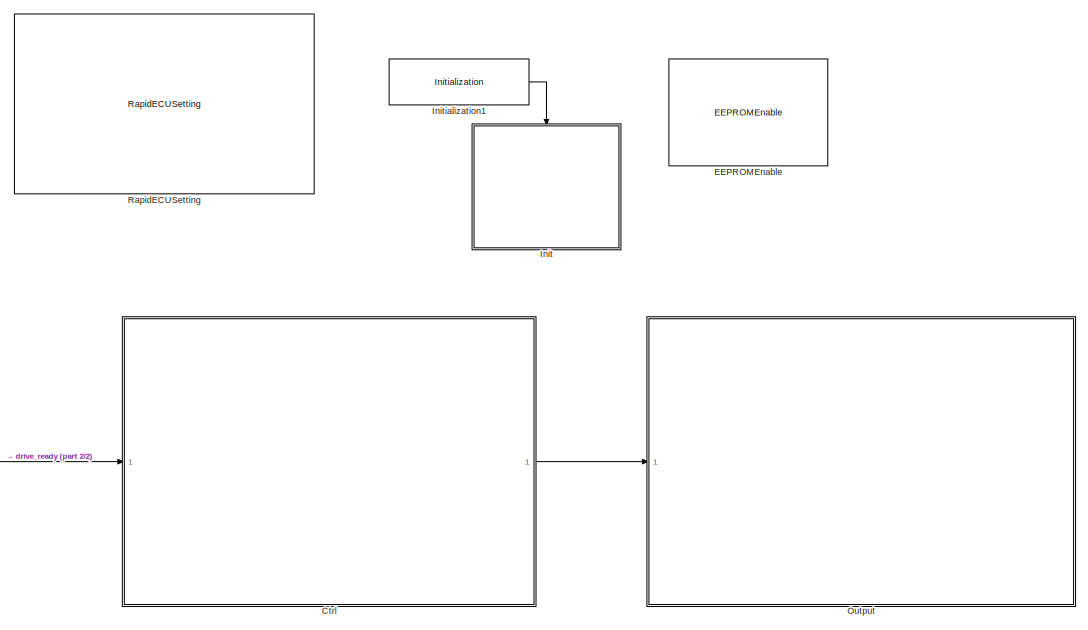
[diagram: root canvas - part 1/2, right side, full height]
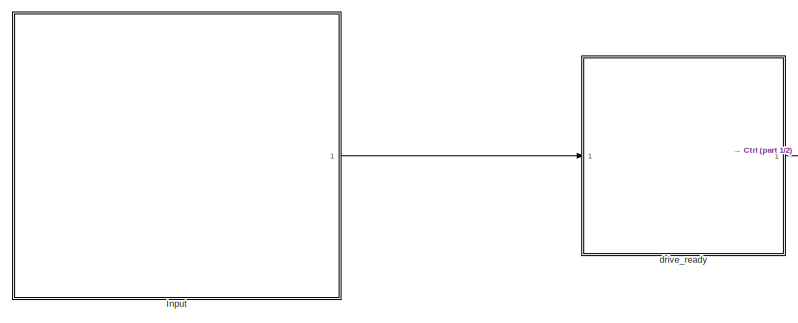
[diagram: root canvas - part 2/2, bottom left region]
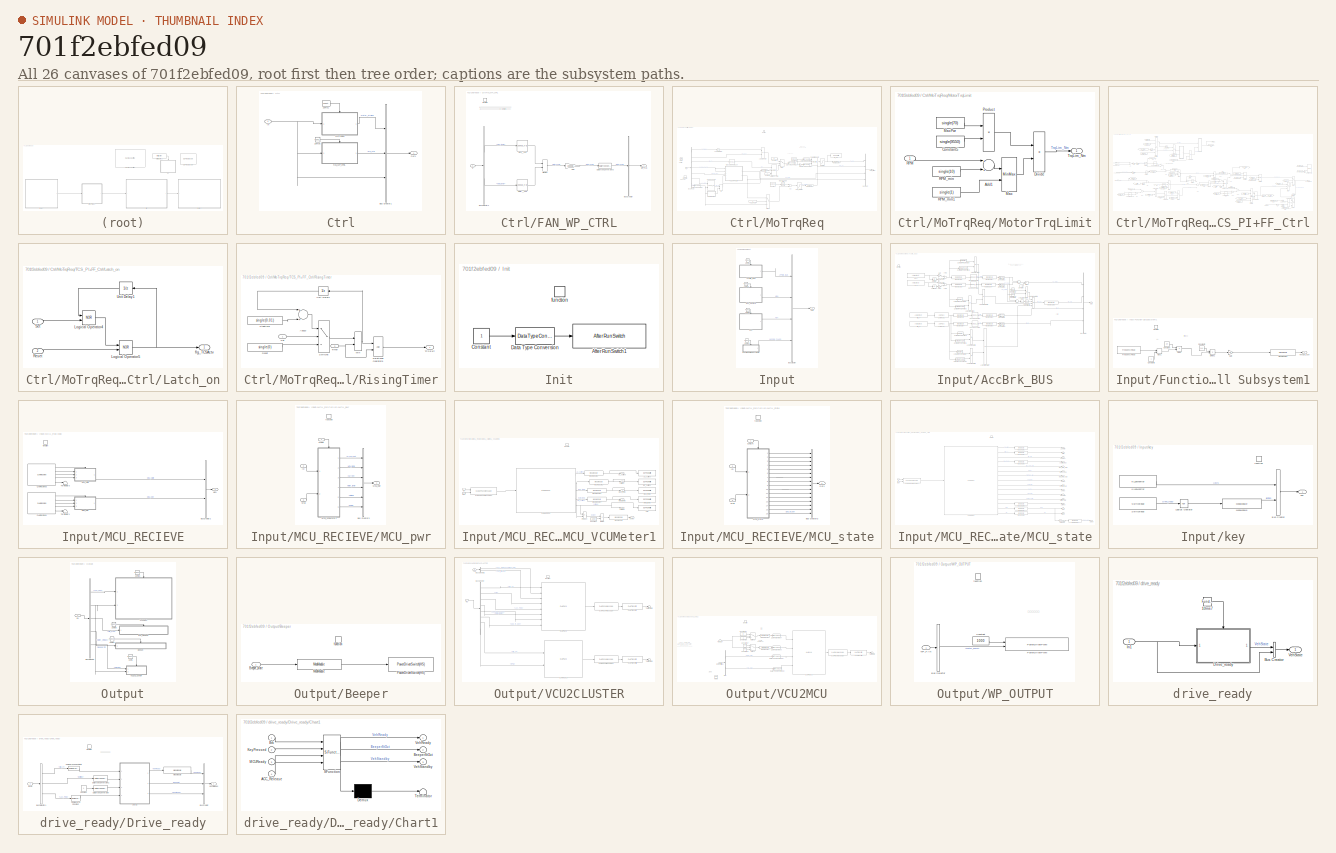
[diagram: thumbnail index - all 26 canvases of the model, root first then tree order]
MODEL slx_701f2ebfed09
KIND model
CONFIG AbsTol = auto
CONFIG EnableMultiTasking = on
CONFIG FixedStep = 0.0005
CONFIG MaxStep = auto
CONFIG MinStep = auto
CONFIG RelTol = 1e-3
CONFIG SampleTimeConstraint = Unconstrained
CONFIG Solver = FixedStepDiscrete
CONFIG SolverName = FixedStepDiscrete
CONFIG StartTime = 0.0
CONFIG StopTime = 10.0
BLOCK [SubSystem] Ctrl
  Ports = [1, 1]
  RequestExecContextInheritance = off
BLOCK [Reference] Ctrl/10ms1  REF=simulink/Ports &
Subsystems/Function-Call
Generator
  Ports = [0, 1]
  SourceBlock = simulink/Ports &\nSubsystems/Function-Call\nGenerator
  SourceProductBaseCode = SL
  SourceType = Function-Call Generator
BLOCK [Reference] Ctrl/10ms5  REF=simulink/Ports &
Subsystems/Function-Call
Generator
  Ports = [0, 1]
  SourceBlock = simulink/Ports &\nSubsystems/Function-Call\nGenerator
  SourceProductBaseCode = SL
  SourceType = Function-Call Generator
BLOCK [BusCreator] Ctrl/Bus Creator1
  DisplayOption = bar
  InheritFromInputs = on
  Inputs = 3
  Ports = [3, 1]
BLOCK [SubSystem] Ctrl/FAN_WP_CTRL
  Ports = [1, 1, 0, 1]
  RequestExecContextInheritance = off
  TreatAsAtomicUnit = on
BLOCK [BusCreator] Ctrl/FAN_WP_CTRL/Bus Creator
  DisplayOption = bar
  InheritFromInputs = on
  Inputs = 1
  Ports = [1, 1]
BLOCK [BusSelector] Ctrl/FAN_WP_CTRL/Bus Selector3
  OutputAsBus = off
  OutputSignals = signal2.MCU.MCU_pwr.MCU_temp,signal2.MCU.MCU_pwr.motor_temp
  Ports = [1, 2]
BLOCK [DataTypeConversion] Ctrl/FAN_WP_CTRL/Data Type Conversion3
  OutDataTypeStr = uint16
  RndMeth = Floor
  SaturateOnIntegerOverflow = off
BLOCK [Gain] Ctrl/FAN_WP_CTRL/Gain
  Gain = 10000/2000
  OutDataTypeStr = Inherit: Inherit via internal rule
  ParamDataTypeStr = Inherit: Inherit via internal rule
  SaturateOnIntegerOverflow = off
BLOCK [Inport] Ctrl/FAN_WP_CTRL/In
  IconDisplay = Port number
BLOCK [Lookup_n-D] Ctrl/FAN_WP_CTRL/MCU__spd
  BreakpointsForDimension1 = uint16([10,15,20,25,30,35,40,45,50,55,60,65,70,75]);
  ExtrapMethod = Clip
  InternalRulePriority = Speed
  NumberOfTableDimensions = 1
  Ports = [1, 1]
  RndMeth = Simplest
  Table = uint16([0,0,600,600,600,600,800,800,800,1000,1000,1000,1000,1000]);
BLOCK [MinMax] Ctrl/FAN_WP_CTRL/MinMax
  Function = max
  InputSameDT = off
  Inputs = 2
  OutDataTypeStr = uint16
  Ports = [2, 1]
  SaturateOnIntegerOverflow = off
BLOCK [Outport] Ctrl/FAN_WP_CTRL/WP_FAN
  IconDisplay = Port number
  VectorParamsAs1DForOutWhenUnconnected = on
BLOCK [TriggerPort] Ctrl/FAN_WP_CTRL/function
  Ports = []
  StatesWhenEnabling = held
  TriggerType = function-call
  VariantControl = (inherit)
BLOCK [Lookup_n-D] Ctrl/FAN_WP_CTRL/moter__spd
  BreakpointsForDimension1 = uint16([0,10,20,30,40,50,60,70,80,90,100,110,120]);
  ExtrapMethod = Clip
  InternalRulePriority = Speed
  NumberOfTableDimensions = 1
  Ports = [1, 1]
  RndMeth = Simplest
  Table = uint16([0,0,0,0,0,0,0,1400,1700,2000,2000,2000,2000]);
BLOCK [Inport] Ctrl/In
  IconDisplay = Port number
BLOCK [SubSystem] Ctrl/MoTrqReq
  Ports = [1, 1, 0, 1]
  RequestExecContextInheritance = off
  TreatAsAtomicUnit = on
BLOCK [Lookup_n-D] Ctrl/MoTrqReq/2-D Lookup Table
  BreakpointsForDimension1 = single([0,10,20,30,40,50,60,70,80,90,100]);
  BreakpointsForDimension1DataTypeStr = single
  BreakpointsForDimension2 = single([200,400,600,800,1000,1200,1400,1600,1800,2000,2200,2400,2600,2800,3000,3500,4000,4500,5000,5200]);
  BreakpointsForDimension2DataTypeStr = single
  InternalRulePriority = Speed
  Ports = [2, 1]
  RndMeth = Simplest
  Table = single(reshape([0,20,35,50,79,100,120,125,130,130,170,0,20,35,50,79,100,120,125,160,160,170,0,20,35,50,79,100,120,125,160,160,180,0,20,35,50,79,105,120,130,160,160,180,0,20,35,50,85,105,125,135,160,160,180,0,20,35,50,85,105,125,140,170,170,210,0,20,30,50,85,110,125,145,160,160,200,0,18,30,50,90,110,135,155,160,160,200,0,18,25,50,95,110,135,155,160,160,200,0,18,25,40,100,110,135,155,160,160,200,0,1...<+377ch>
BLOCK [Sum] Ctrl/MoTrqReq/Add
  InputSameDT = off
  OutDataTypeStr = Inherit: Inherit via internal rule
  Ports = [2, 1]
  SaturateOnIntegerOverflow = off
BLOCK [Lookup_n-D] Ctrl/MoTrqReq/BrakeCompensateCoef
  BreakpointsForDimension1 = single([550,2000]);
  ExtrapMethod = Clip
  InternalRulePriority = Speed
  NumberOfTableDimensions = 1
  OutDataTypeStr = single
  Ports = [1, 1]
  RndMeth = Simplest
  Table = single([1000,0]);
BLOCK [BusCreator] Ctrl/MoTrqReq/Bus Creator
  DisplayOption = bar
  InheritFromInputs = on
  Inputs = 4
  Ports = [4, 1]
BLOCK [BusSelector] Ctrl/MoTrqReq/Bus Selector
  OutputAsBus = off
  OutputSignals = VehState.VehReady,signal2.APPBrk_BUS.Trq_CUT,signal2.APPBrk_BUS.Brk_F,signal2.VehSpd_FLkph,signal2.MCU.MCU_state.Spd_R_kph,signal2.APPBrk_BUS.Acc_POS,signal2.MCU.MCU_state.RPM
  Ports = [1, 7]
BLOCK [Constant] Ctrl/MoTrqReq/Constant
  OutDataTypeStr = single
  Value = 420000
BLOCK [Constant] Ctrl/MoTrqReq/Constant1
  OutDataTypeStr = single
  Value = 0
BLOCK [Constant] Ctrl/MoTrqReq/Constant2
  OutDataTypeStr = single
  Value = 25000
BLOCK [Constant] Ctrl/MoTrqReq/Constant3
  OutDataTypeStr = single
  Value = 0
BLOCK [DataTypeConversion] Ctrl/MoTrqReq/Data Type Conversion
  OutDataTypeStr = single
  RndMeth = Floor
  SaturateOnIntegerOverflow = off
BLOCK [DataTypeConversion] Ctrl/MoTrqReq/Data Type Conversion3
  OutDataTypeStr = single
  RndMeth = Floor
  SaturateOnIntegerOverflow = off
BLOCK [DataTypeConversion] Ctrl/MoTrqReq/Data Type Conversion4
  OutDataTypeStr = single
  RndMeth = Floor
  SaturateOnIntegerOverflow = off
BLOCK [DataTypeConversion] Ctrl/MoTrqReq/Data Type Conversion5
  OutDataTypeStr = single
  RndMeth = Floor
  SaturateOnIntegerOverflow = off
BLOCK [Gain] Ctrl/MoTrqReq/Gain
  Gain = 1000/260
  OutDataTypeStr = Inherit: Inherit via internal rule
  ParamDataTypeStr = Inherit: Inherit via internal rule
  SaturateOnIntegerOverflow = off
BLOCK [Gain] Ctrl/MoTrqReq/Gain1
  Gain = -1
  OutDataTypeStr = Inherit: Inherit via internal rule
  ParamDataTypeStr = Inherit: Inherit via internal rule
  SaturateOnIntegerOverflow = off
BLOCK [Inport] Ctrl/MoTrqReq/In
  IconDisplay = Port number
BLOCK [Logic] Ctrl/MoTrqReq/Logical Operator
  AllPortsSameDT = off
  Operator = OR
  OutDataTypeStr = boolean
  Ports = [2, 1]
BLOCK [Logic] Ctrl/MoTrqReq/Logical Operator1
  AllPortsSameDT = off
  Operator = NOT
  OutDataTypeStr = boolean
  Ports = [1, 1]
BLOCK [Reference] Ctrl/MoTrqReq/MeaModule1  REF=ec5744lib/HYFCU001/07Calibration/MeaModule
  Ports = [1, 1]
  SourceBlock = ec5744lib/HYFCU001/07Calibration/MeaModule
  SourceProductName = ECUCoder for MPC5744
  SourceType = Measurement Module
BLOCK [Reference] Ctrl/MoTrqReq/MeaModule2  REF=ec5744lib/HYFCU001/07Calibration/MeaModule
  Ports = [1, 1]
  SourceBlock = ec5744lib/HYFCU001/07Calibration/MeaModule
  SourceProductName = ECUCoder for MPC5744
  SourceType = Measurement Module
BLOCK [MinMax] Ctrl/MoTrqReq/Min
  InputSameDT = off
  Inputs = 2
  Ports = [2, 1]
  SaturateOnIntegerOverflow = off
BLOCK [SubSystem] Ctrl/MoTrqReq/MotorTrqLimit
  Ports = [1, 1]
  RequestExecContextInheritance = off
BLOCK [Sum] Ctrl/MoTrqReq/MotorTrqLimit/Add1
  InputSameDT = off
  OutDataTypeStr = Inherit: Inherit via internal rule
  Ports = [2, 1]
  SaturateOnIntegerOverflow = off
BLOCK [Constant] Ctrl/MoTrqReq/MotorTrqLimit/Constant5
  OutDataTypeStr = single
  Value = single(9550)
BLOCK [Product] Ctrl/MoTrqReq/MotorTrqLimit/Divide
  InputSameDT = off
  Inputs = */
  OutDataTypeStr = Inherit: Inherit via internal rule
  Ports = [2, 1]
  RndMeth = Floor
  SaturateOnIntegerOverflow = off
BLOCK [MinMax] Ctrl/MoTrqReq/MotorTrqLimit/Max
  Function = max
  InputSameDT = off
  Inputs = 2
  Ports = [2, 1]
  SaturateOnIntegerOverflow = off
BLOCK [Constant] Ctrl/MoTrqReq/MotorTrqLimit/MaxPwr
  OutDataTypeStr = single
  Value = single(70)
BLOCK [Product] Ctrl/MoTrqReq/MotorTrqLimit/Product
  InputSameDT = off
  OutDataTypeStr = Inherit: Inherit via internal rule
  Ports = [2, 1]
  RndMeth = Floor
  SaturateOnIntegerOverflow = off
BLOCK [Inport] Ctrl/MoTrqReq/MotorTrqLimit/RPM
  IconDisplay = Port number
BLOCK [Constant] Ctrl/MoTrqReq/MotorTrqLimit/RPM_min
  OutDataTypeStr = single
  Value = single(10)
BLOCK [Constant] Ctrl/MoTrqReq/MotorTrqLimit/RPM_min1
  OutDataTypeStr = single
  Value = single(1)
BLOCK [Outport] Ctrl/MoTrqReq/MotorTrqLimit/TrqLim_Nm
  IconDisplay = Port number
  VectorParamsAs1DForOutWhenUnconnected = on
BLOCK [Outport] Ctrl/MoTrqReq/Motor_CtrlBus
  IconDisplay = Port number
BLOCK [Saturate] Ctrl/MoTrqReq/RPM_Saturation
  InputPortMap = u0
  LowerLimit = -50
  Ports = [1, 1]
  UpperLimit = 5000
BLOCK [Reference] Ctrl/MoTrqReq/Ramp  REF=simulink/Sources/Ramp
  Commented = on
  Ports = [0, 1]
  SourceBlock = simulink/Sources/Ramp
  SourceProductBaseCode = SL
  SourceType = Ramp
BLOCK [RateLimiter] Ctrl/MoTrqReq/Rate Limiter
  Commented = on
  SampleTimeMode = inherited
BLOCK [Reference] Ctrl/MoTrqReq/Rate Limiter Dynamic  REF=simulink/Discontinuities/Rate Limiter
Dynamic
  Ports = [3, 1]
  SourceBlock = simulink/Discontinuities/Rate Limiter\nDynamic
  SourceProductBaseCode = SL
  SourceType = Rate Limiter Dynamic
BLOCK [Saturate] Ctrl/MoTrqReq/Saturation
  InputPortMap = u0
  LowerLimit = -1000
  Ports = [1, 1]
  UpperLimit = 1000
BLOCK [Reference] Ctrl/MoTrqReq/Saturation Dynamic  REF=simulink/Discontinuities/Saturation
Dynamic
  Ports = [3, 1]
  SourceBlock = simulink/Discontinuities/Saturation\nDynamic
  SourceProductBaseCode = SL
  SourceType = Saturation Dynamic
BLOCK [Switch] Ctrl/MoTrqReq/Switch
  Criteria = u2 ~= 0
  InputSameDT = off
  SaturateOnIntegerOverflow = off
BLOCK [Switch] Ctrl/MoTrqReq/Switch1
  Criteria = u2 ~= 0
  InputSameDT = off
  SaturateOnIntegerOverflow = off
BLOCK [Constant] Ctrl/MoTrqReq/TCS_Enable
  OutDataTypeStr = boolean
  Value = 0
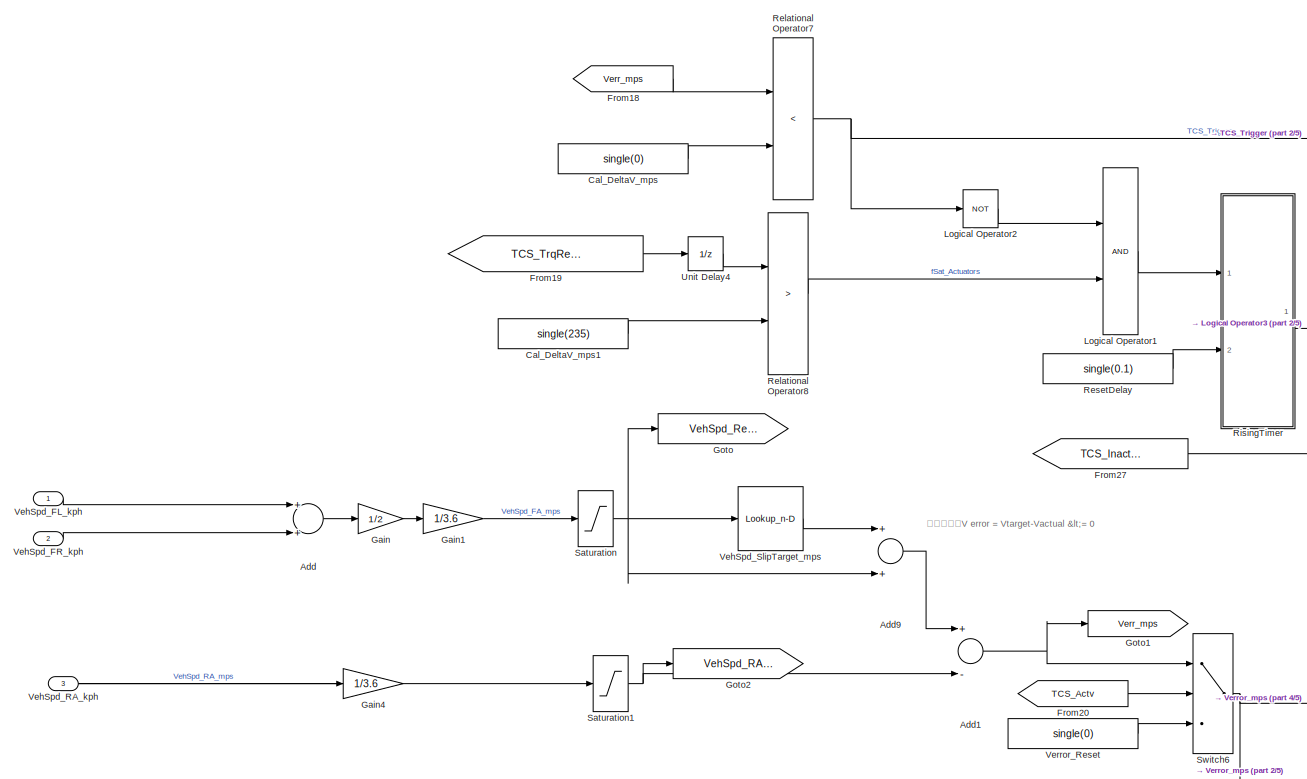
[diagram: Ctrl/MoTrqReq/TCS_PI+FF_Ctrl - part 1/5, top left region]
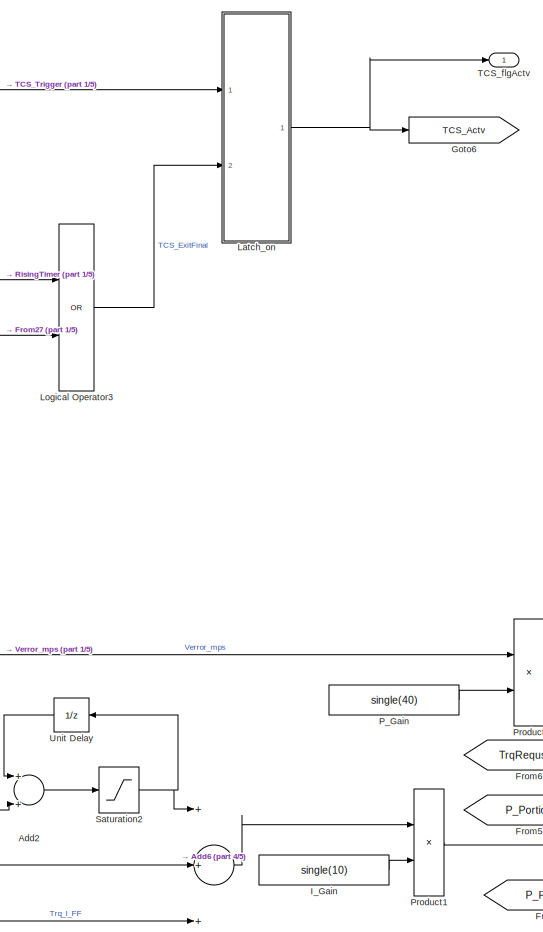
[diagram: Ctrl/MoTrqReq/TCS_PI+FF_Ctrl - part 2/5, central region]
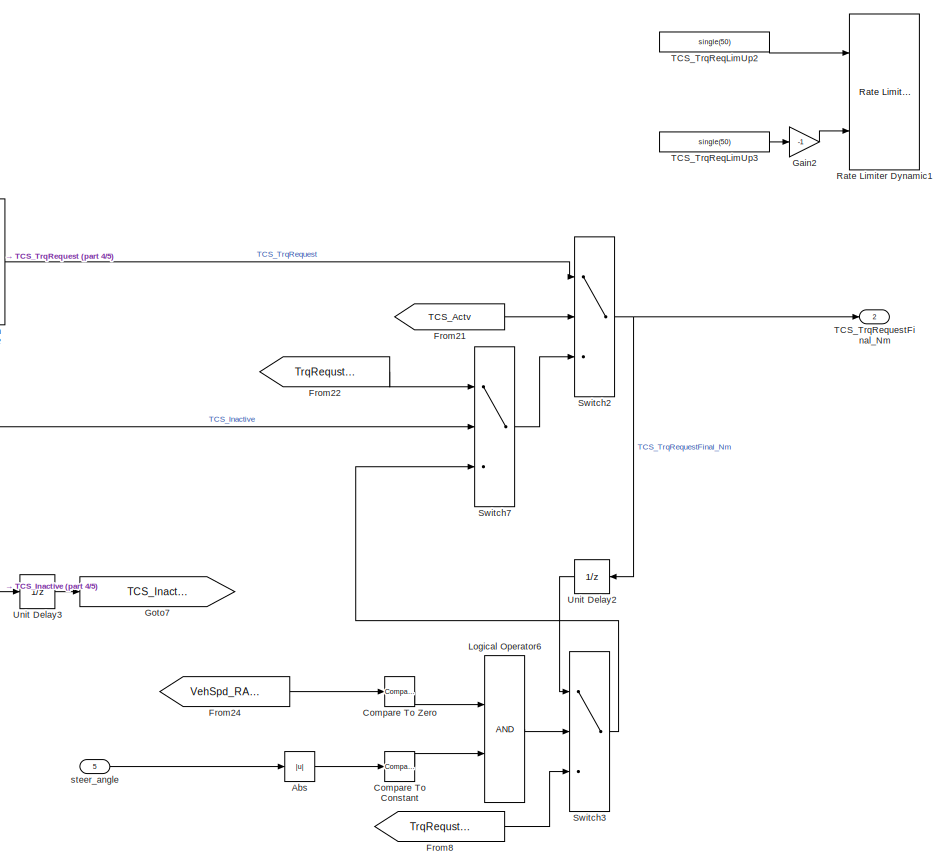
[diagram: Ctrl/MoTrqReq/TCS_PI+FF_Ctrl - part 3/5, bottom right region]
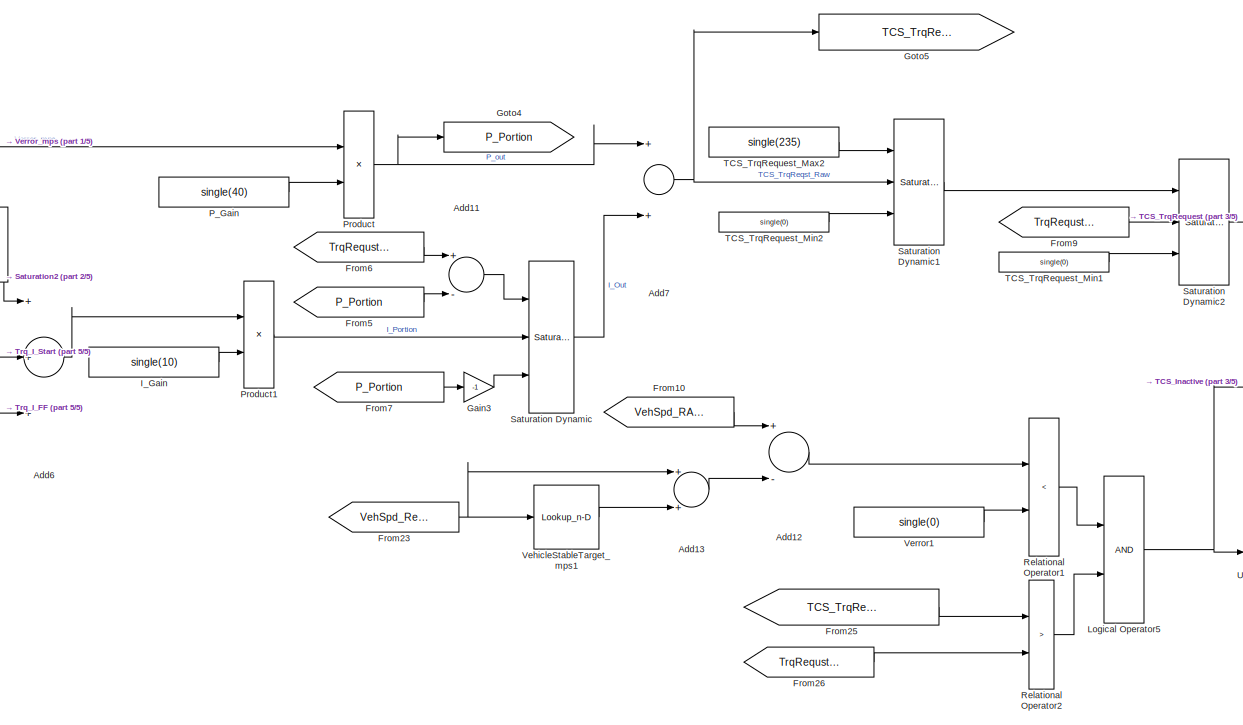
[diagram: Ctrl/MoTrqReq/TCS_PI+FF_Ctrl - part 4/5, central region]
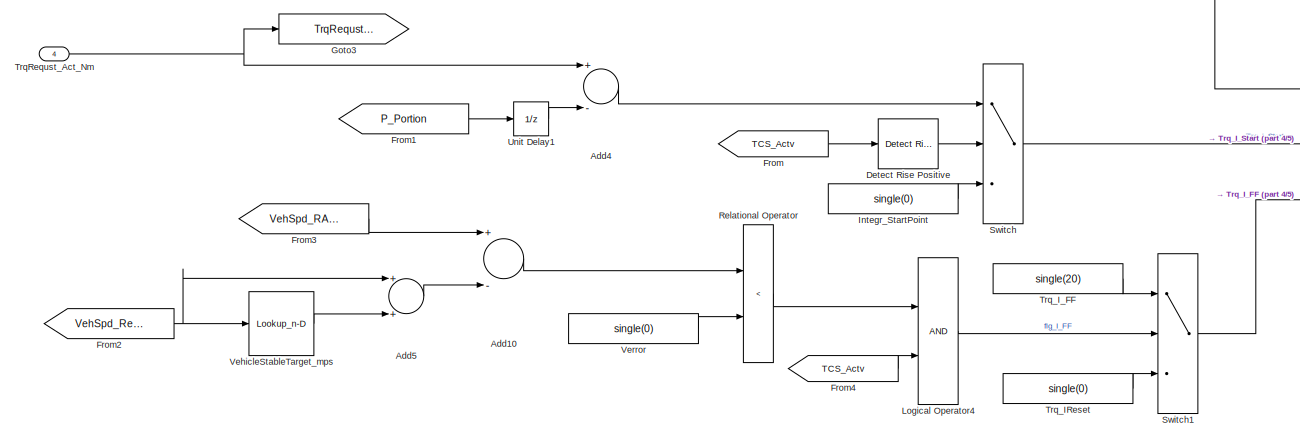
[diagram: Ctrl/MoTrqReq/TCS_PI+FF_Ctrl - part 5/5, bottom left region]
BLOCK [SubSystem] Ctrl/MoTrqReq/TCS_PI+FF_Ctrl
  Ports = [5, 2]
  RequestExecContextInheritance = off
BLOCK [Abs] Ctrl/MoTrqReq/TCS_PI+FF_Ctrl/Abs
  SaturateOnIntegerOverflow = off
BLOCK [Sum] Ctrl/MoTrqReq/TCS_PI+FF_Ctrl/Add
  InputSameDT = off
  OutDataTypeStr = Inherit: Inherit via internal rule
  Ports = [2, 1]
  SaturateOnIntegerOverflow = off
BLOCK [Sum] Ctrl/MoTrqReq/TCS_PI+FF_Ctrl/Add1
  InputSameDT = off
  Inputs = +-
  OutDataTypeStr = Inherit: Inherit via internal rule
  Ports = [2, 1]
  SaturateOnIntegerOverflow = off
BLOCK [Sum] Ctrl/MoTrqReq/TCS_PI+FF_Ctrl/Add10
  InputSameDT = off
  Inputs = +-
  OutDataTypeStr = Inherit: Inherit via internal rule
  Ports = [2, 1]
  SaturateOnIntegerOverflow = off
BLOCK [Sum] Ctrl/MoTrqReq/TCS_PI+FF_Ctrl/Add11
  InputSameDT = off
  Inputs = +-
  OutDataTypeStr = Inherit: Inherit via internal rule
  Ports = [2, 1]
  SaturateOnIntegerOverflow = off
BLOCK [Sum] Ctrl/MoTrqReq/TCS_PI+FF_Ctrl/Add12
  InputSameDT = off
  Inputs = +-
  OutDataTypeStr = Inherit: Inherit via internal rule
  Ports = [2, 1]
  SaturateOnIntegerOverflow = off
BLOCK [Sum] Ctrl/MoTrqReq/TCS_PI+FF_Ctrl/Add13
  InputSameDT = off
  OutDataTypeStr = Inherit: Inherit via internal rule
  Ports = [2, 1]
  SaturateOnIntegerOverflow = off
BLOCK [Sum] Ctrl/MoTrqReq/TCS_PI+FF_Ctrl/Add2
  InputSameDT = off
  OutDataTypeStr = Inherit: Inherit via internal rule
  Ports = [2, 1]
  SaturateOnIntegerOverflow = off
BLOCK [Sum] Ctrl/MoTrqReq/TCS_PI+FF_Ctrl/Add4
  InputSameDT = off
  Inputs = +-
  OutDataTypeStr = Inherit: Inherit via internal rule
  Ports = [2, 1]
  SaturateOnIntegerOverflow = off
BLOCK [Sum] Ctrl/MoTrqReq/TCS_PI+FF_Ctrl/Add5
  InputSameDT = off
  OutDataTypeStr = Inherit: Inherit via internal rule
  Ports = [2, 1]
  SaturateOnIntegerOverflow = off
BLOCK [Sum] Ctrl/MoTrqReq/TCS_PI+FF_Ctrl/Add6
  InputSameDT = off
  Inputs = +++
  OutDataTypeStr = Inherit: Inherit via internal rule
  Ports = [3, 1]
  SaturateOnIntegerOverflow = off
BLOCK [Sum] Ctrl/MoTrqReq/TCS_PI+FF_Ctrl/Add7
  InputSameDT = off
  OutDataTypeStr = Inherit: Inherit via internal rule
  Ports = [2, 1]
  SaturateOnIntegerOverflow = off
BLOCK [Sum] Ctrl/MoTrqReq/TCS_PI+FF_Ctrl/Add9
  InputSameDT = off
  OutDataTypeStr = Inherit: Inherit via internal rule
  Ports = [2, 1]
  SaturateOnIntegerOverflow = off
BLOCK [Constant] Ctrl/MoTrqReq/TCS_PI+FF_Ctrl/Cal_DeltaV_mps
  Value = single(0)
BLOCK [Constant] Ctrl/MoTrqReq/TCS_PI+FF_Ctrl/Cal_DeltaV_mps1
  Value = single(235)
BLOCK [Reference] Ctrl/MoTrqReq/TCS_PI+FF_Ctrl/Compare To Constant  REF=simulink/Logic and Bit
Operations/Compare
To Constant
  Ports = [1, 1]
  SourceBlock = simulink/Logic and Bit\nOperations/Compare\nTo Constant
  SourceProductBaseCode = SL
  SourceProductName = Simulink
  SourceType = Compare To Constant
BLOCK [Reference] Ctrl/MoTrqReq/TCS_PI+FF_Ctrl/Compare To Zero  REF=simulink/Logic and Bit
Operations/Compare
To Zero
  Ports = [1, 1]
  SourceBlock = simulink/Logic and Bit\nOperations/Compare\nTo Zero
  SourceProductBaseCode = SL
  SourceProductName = Simulink
  SourceType = Compare To Zero
BLOCK [Reference] Ctrl/MoTrqReq/TCS_PI+FF_Ctrl/Detect Rise Positive  REF=simulink/Logic and Bit
Operations/Detect Rise
Positive
  Ports = [1, 1]
  SourceBlock = simulink/Logic and Bit\nOperations/Detect Rise\nPositive
  SourceProductBaseCode = SL
  SourceType = Detect Rise Positive
BLOCK [From] Ctrl/MoTrqReq/TCS_PI+FF_Ctrl/From
  GotoTag = TCS_Actv
BLOCK [From] Ctrl/MoTrqReq/TCS_PI+FF_Ctrl/From1
  GotoTag = P_Portion
BLOCK [From] Ctrl/MoTrqReq/TCS_PI+FF_Ctrl/From10
  GotoTag = VehSpd_RA_mps
BLOCK [From] Ctrl/MoTrqReq/TCS_PI+FF_Ctrl/From18
  GotoTag = Verr_mps
BLOCK [From] Ctrl/MoTrqReq/TCS_PI+FF_Ctrl/From19
  GotoTag = TCS_TrqReqstRaw_Nm
BLOCK [From] Ctrl/MoTrqReq/TCS_PI+FF_Ctrl/From2
  GotoTag = VehSpd_Ref_mps
BLOCK [From] Ctrl/MoTrqReq/TCS_PI+FF_Ctrl/From20
  GotoTag = TCS_Actv
BLOCK [From] Ctrl/MoTrqReq/TCS_PI+FF_Ctrl/From21
  GotoTag = TCS_Actv
BLOCK [From] Ctrl/MoTrqReq/TCS_PI+FF_Ctrl/From22
  GotoTag = TrqRequst_Act_Nm
BLOCK [From] Ctrl/MoTrqReq/TCS_PI+FF_Ctrl/From23
  GotoTag = VehSpd_Ref_mps
BLOCK [From] Ctrl/MoTrqReq/TCS_PI+FF_Ctrl/From24
  GotoTag = VehSpd_RA_mps
BLOCK [From] Ctrl/MoTrqReq/TCS_PI+FF_Ctrl/From25
  GotoTag = TCS_TrqReqstRaw_Nm
BLOCK [From] Ctrl/MoTrqReq/TCS_PI+FF_Ctrl/From26
  GotoTag = TrqRequst_Act_Nm
BLOCK [From] Ctrl/MoTrqReq/TCS_PI+FF_Ctrl/From27
  GotoTag = TCS_Inactive
BLOCK [From] Ctrl/MoTrqReq/TCS_PI+FF_Ctrl/From3
  GotoTag = VehSpd_RA_mps
BLOCK [From] Ctrl/MoTrqReq/TCS_PI+FF_Ctrl/From4
  GotoTag = TCS_Actv
BLOCK [From] Ctrl/MoTrqReq/TCS_PI+FF_Ctrl/From5
  GotoTag = P_Portion
BLOCK [From] Ctrl/MoTrqReq/TCS_PI+FF_Ctrl/From6
  GotoTag = TrqRequst_Act_Nm
BLOCK [From] Ctrl/MoTrqReq/TCS_PI+FF_Ctrl/From7
  GotoTag = P_Portion
BLOCK [From] Ctrl/MoTrqReq/TCS_PI+FF_Ctrl/From8
  GotoTag = TrqRequst_Act_Nm
BLOCK [From] Ctrl/MoTrqReq/TCS_PI+FF_Ctrl/From9
  GotoTag = TrqRequst_Act_Nm
BLOCK [Gain] Ctrl/MoTrqReq/TCS_PI+FF_Ctrl/Gain
  Gain = 1/2
  OutDataTypeStr = Inherit: Inherit via internal rule
  ParamDataTypeStr = Inherit: Inherit via internal rule
  SaturateOnIntegerOverflow = off
BLOCK [Gain] Ctrl/MoTrqReq/TCS_PI+FF_Ctrl/Gain1
  Gain = 1/3.6
  OutDataTypeStr = Inherit: Inherit via internal rule
  ParamDataTypeStr = Inherit: Inherit via internal rule
  SaturateOnIntegerOverflow = off
BLOCK [Gain] Ctrl/MoTrqReq/TCS_PI+FF_Ctrl/Gain2
  Commented = on
  Gain = -1
  OutDataTypeStr = Inherit: Inherit via internal rule
  ParamDataTypeStr = Inherit: Inherit via internal rule
  SaturateOnIntegerOverflow = off
BLOCK [Gain] Ctrl/MoTrqReq/TCS_PI+FF_Ctrl/Gain3
  Gain = -1
  OutDataTypeStr = Inherit: Inherit via internal rule
  ParamDataTypeStr = Inherit: Inherit via internal rule
  SaturateOnIntegerOverflow = off
BLOCK [Gain] Ctrl/MoTrqReq/TCS_PI+FF_Ctrl/Gain4
  Gain = 1/3.6
  OutDataTypeStr = Inherit: Inherit via internal rule
  ParamDataTypeStr = Inherit: Inherit via internal rule
  SaturateOnIntegerOverflow = off
BLOCK [Goto] Ctrl/MoTrqReq/TCS_PI+FF_Ctrl/Goto
  GotoTag = VehSpd_Ref_mps
BLOCK [Goto] Ctrl/MoTrqReq/TCS_PI+FF_Ctrl/Goto1
  GotoTag = Verr_mps
BLOCK [Goto] Ctrl/MoTrqReq/TCS_PI+FF_Ctrl/Goto2
  GotoTag = VehSpd_RA_mps
BLOCK [Goto] Ctrl/MoTrqReq/TCS_PI+FF_Ctrl/Goto3
  GotoTag = TrqRequst_Act_Nm
BLOCK [Goto] Ctrl/MoTrqReq/TCS_PI+FF_Ctrl/Goto4
  GotoTag = P_Portion
BLOCK [Goto] Ctrl/MoTrqReq/TCS_PI+FF_Ctrl/Goto5
  GotoTag = TCS_TrqReqstRaw_Nm
BLOCK [Goto] Ctrl/MoTrqReq/TCS_PI+FF_Ctrl/Goto6
  GotoTag = TCS_Actv
BLOCK [Goto] Ctrl/MoTrqReq/TCS_PI+FF_Ctrl/Goto7
  GotoTag = TCS_Inactive
BLOCK [Constant] Ctrl/MoTrqReq/TCS_PI+FF_Ctrl/I_Gain
  Value = single(10)
BLOCK [Constant] Ctrl/MoTrqReq/TCS_PI+FF_Ctrl/Integr_StartPoint
  Value = single(0)
BLOCK [SubSystem] Ctrl/MoTrqReq/TCS_PI+FF_Ctrl/Latch_on
  Ports = [2, 1]
  RequestExecContextInheritance = off
BLOCK [Logic] Ctrl/MoTrqReq/TCS_PI+FF_Ctrl/Latch_on/Logical Operator4
  AllPortsSameDT = off
  Operator = NOR
  OutDataTypeStr = boolean
  Ports = [2, 1]
BLOCK [Logic] Ctrl/MoTrqReq/TCS_PI+FF_Ctrl/Latch_on/Logical Operator5
  AllPortsSameDT = off
  Operator = NOR
  OutDataTypeStr = boolean
  Ports = [2, 1]
BLOCK [Inport] Ctrl/MoTrqReq/TCS_PI+FF_Ctrl/Latch_on/Reset
  IconDisplay = Port number
  Port = 2
BLOCK [Inport] Ctrl/MoTrqReq/TCS_PI+FF_Ctrl/Latch_on/Set
  IconDisplay = Port number
BLOCK [UnitDelay] Ctrl/MoTrqReq/TCS_PI+FF_Ctrl/Latch_on/Unit Delay1
  InputProcessing = Elements as channels (sample based)
  SampleTime = -1
BLOCK [Outport] Ctrl/MoTrqReq/TCS_PI+FF_Ctrl/Latch_on/flg_TCSActv
  IconDisplay = Port number
  VectorParamsAs1DForOutWhenUnconnected = on
BLOCK [Logic] Ctrl/MoTrqReq/TCS_PI+FF_Ctrl/Logical Operator1
  AllPortsSameDT = off
  OutDataTypeStr = boolean
  Ports = [2, 1]
BLOCK [Logic] Ctrl/MoTrqReq/TCS_PI+FF_Ctrl/Logical Operator2
  AllPortsSameDT = off
  Operator = NOT
  OutDataTypeStr = boolean
  Ports = [1, 1]
BLOCK [Logic] Ctrl/MoTrqReq/TCS_PI+FF_Ctrl/Logical Operator3
  AllPortsSameDT = off
  Operator = OR
  OutDataTypeStr = boolean
  Ports = [2, 1]
BLOCK [Logic] Ctrl/MoTrqReq/TCS_PI+FF_Ctrl/Logical Operator4
  AllPortsSameDT = off
  OutDataTypeStr = boolean
  Ports = [2, 1]
BLOCK [Logic] Ctrl/MoTrqReq/TCS_PI+FF_Ctrl/Logical Operator5
  AllPortsSameDT = off
  OutDataTypeStr = boolean
  Ports = [2, 1]
BLOCK [Logic] Ctrl/MoTrqReq/TCS_PI+FF_Ctrl/Logical Operator6
  AllPortsSameDT = off
  OutDataTypeStr = boolean
  Ports = [2, 1]
BLOCK [Constant] Ctrl/MoTrqReq/TCS_PI+FF_Ctrl/P_Gain
  Value = single(40)
BLOCK [Product] Ctrl/MoTrqReq/TCS_PI+FF_Ctrl/Product
  InputSameDT = off
  OutDataTypeStr = Inherit: Inherit via internal rule
  Ports = [2, 1]
  RndMeth = Floor
  SaturateOnIntegerOverflow = off
BLOCK [Product] Ctrl/MoTrqReq/TCS_PI+FF_Ctrl/Product1
  InputSameDT = off
  OutDataTypeStr = Inherit: Inherit via internal rule
  Ports = [2, 1]
  RndMeth = Floor
  SaturateOnIntegerOverflow = off
BLOCK [Reference] Ctrl/MoTrqReq/TCS_PI+FF_Ctrl/Rate Limiter Dynamic1  REF=simulink/Discontinuities/Rate Limiter
Dynamic
  Commented = on
  Ports = [3, 1]
  SourceBlock = simulink/Discontinuities/Rate Limiter\nDynamic
  SourceProductBaseCode = SL
  SourceType = Rate Limiter Dynamic
BLOCK [RelationalOperator] Ctrl/MoTrqReq/TCS_PI+FF_Ctrl/Relational Operator
  InputSameDT = off
  Operator = <
  OutDataTypeStr = boolean
  Ports = [2, 1]
  RndMeth = Simplest
BLOCK [RelationalOperator] Ctrl/MoTrqReq/TCS_PI+FF_Ctrl/Relational Operator1
  InputSameDT = off
  Operator = <
  OutDataTypeStr = boolean
  Ports = [2, 1]
  RndMeth = Simplest
BLOCK [RelationalOperator] Ctrl/MoTrqReq/TCS_PI+FF_Ctrl/Relational Operator2
  InputSameDT = off
  Operator = >
  OutDataTypeStr = boolean
  Ports = [2, 1]
  RndMeth = Simplest
BLOCK [RelationalOperator] Ctrl/MoTrqReq/TCS_PI+FF_Ctrl/Relational Operator7
  InputSameDT = off
  Operator = <
  OutDataTypeStr = boolean
  Ports = [2, 1]
  RndMeth = Simplest
BLOCK [RelationalOperator] Ctrl/MoTrqReq/TCS_PI+FF_Ctrl/Relational Operator8
  InputSameDT = off
  Operator = >
  OutDataTypeStr = boolean
  Ports = [2, 1]
  RndMeth = Simplest
BLOCK [Constant] Ctrl/MoTrqReq/TCS_PI+FF_Ctrl/ResetDelay
  Value = single(0.1)
BLOCK [SubSystem] Ctrl/MoTrqReq/TCS_PI+FF_Ctrl/RisingTimer
  Ports = [2, 1]
  RequestExecContextInheritance = off
BLOCK [Sum] Ctrl/MoTrqReq/TCS_PI+FF_Ctrl/RisingTimer/Add10
  InputSameDT = off
  OutDataTypeStr = Inherit: Inherit via internal rule
  Ports = [2, 1]
  SaturateOnIntegerOverflow = off
BLOCK [MinMax] Ctrl/MoTrqReq/TCS_PI+FF_Ctrl/RisingTimer/Min
  InputSameDT = off
  Inputs = 2
  Ports = [2, 1]
  SaturateOnIntegerOverflow = off
BLOCK [RelationalOperator] Ctrl/MoTrqReq/TCS_PI+FF_Ctrl/RisingTimer/Relational Operator9
  InputSameDT = off
  OutDataTypeStr = boolean
  Ports = [2, 1]
  RndMeth = Simplest
BLOCK [Constant] Ctrl/MoTrqReq/TCS_PI+FF_Ctrl/RisingTimer/Reset
  Value = single(0)
BLOCK [Inport] Ctrl/MoTrqReq/TCS_PI+FF_Ctrl/RisingTimer/Set
  IconDisplay = Port number
BLOCK [Constant] Ctrl/MoTrqReq/TCS_PI+FF_Ctrl/RisingTimer/Steptime
  Value = single(0.01)
BLOCK [Switch] Ctrl/MoTrqReq/TCS_PI+FF_Ctrl/RisingTimer/Switch6
  Criteria = u2 ~= 0
  InputSameDT = off
  SaturateOnIntegerOverflow = off
BLOCK [Outport] Ctrl/MoTrqReq/TCS_PI+FF_Ctrl/RisingTimer/TCSExit
  IconDisplay = Port number
  VectorParamsAs1DForOutWhenUnconnected = on
BLOCK [Inport] Ctrl/MoTrqReq/TCS_PI+FF_Ctrl/RisingTimer/Timer
  IconDisplay = Port number
  Port = 2
BLOCK [UnitDelay] Ctrl/MoTrqReq/TCS_PI+FF_Ctrl/RisingTimer/Unit Delay1
  InputProcessing = Elements as channels (sample based)
  SampleTime = -1
BLOCK [Saturate] Ctrl/MoTrqReq/TCS_PI+FF_Ctrl/Saturation
  InputPortMap = u0
  LowerLimit = 0
  Ports = [1, 1]
  UpperLimit = 40
BLOCK [Reference] Ctrl/MoTrqReq/TCS_PI+FF_Ctrl/Saturation Dynamic  REF=simulink/Discontinuities/Saturation
Dynamic
  Ports = [3, 1]
  SourceBlock = simulink/Discontinuities/Saturation\nDynamic
  SourceProductBaseCode = SL
  SourceType = Saturation Dynamic
BLOCK [Reference] Ctrl/MoTrqReq/TCS_PI+FF_Ctrl/Saturation Dynamic1  REF=simulink/Discontinuities/Saturation
Dynamic
  Ports = [3, 1]
  SourceBlock = simulink/Discontinuities/Saturation\nDynamic
  SourceProductBaseCode = SL
  SourceType = Saturation Dynamic
BLOCK [Reference] Ctrl/MoTrqReq/TCS_PI+FF_Ctrl/Saturation Dynamic2  REF=simulink/Discontinuities/Saturation
Dynamic
  Ports = [3, 1]
  SourceBlock = simulink/Discontinuities/Saturation\nDynamic
  SourceProductBaseCode = SL
  SourceType = Saturation Dynamic
BLOCK [Saturate] Ctrl/MoTrqReq/TCS_PI+FF_Ctrl/Saturation1
  InputPortMap = u0
  LowerLimit = 0
  Ports = [1, 1]
  UpperLimit = 50
BLOCK [Saturate] Ctrl/MoTrqReq/TCS_PI+FF_Ctrl/Saturation2
  InputPortMap = u0
  LowerLimit = -100
  Ports = [1, 1]
  UpperLimit = 400
BLOCK [Switch] Ctrl/MoTrqReq/TCS_PI+FF_Ctrl/Switch
  Criteria = u2 ~= 0
  InputSameDT = off
  SaturateOnIntegerOverflow = off
BLOCK [Switch] Ctrl/MoTrqReq/TCS_PI+FF_Ctrl/Switch1
  Criteria = u2 ~= 0
  InputSameDT = off
  SaturateOnIntegerOverflow = off
BLOCK [Switch] Ctrl/MoTrqReq/TCS_PI+FF_Ctrl/Switch2
  Criteria = u2 ~= 0
  InputSameDT = off
  SaturateOnIntegerOverflow = off
BLOCK [Switch] Ctrl/MoTrqReq/TCS_PI+FF_Ctrl/Switch3
  Criteria = u2 ~= 0
  InputSameDT = off
  SaturateOnIntegerOverflow = off
BLOCK [Switch] Ctrl/MoTrqReq/TCS_PI+FF_Ctrl/Switch6
  Criteria = u2 ~= 0
  InputSameDT = off
  SaturateOnIntegerOverflow = off
BLOCK [Switch] Ctrl/MoTrqReq/TCS_PI+FF_Ctrl/Switch7
  Criteria = u2 ~= 0
  InputSameDT = off
  SaturateOnIntegerOverflow = off
BLOCK [Constant] Ctrl/MoTrqReq/TCS_PI+FF_Ctrl/TCS_TrqReqLimUp2
  Commented = on
  Value = single(50)
BLOCK [Constant] Ctrl/MoTrqReq/TCS_PI+FF_Ctrl/TCS_TrqReqLimUp3
  Commented = on
  Value = single(50)
BLOCK [Outport] Ctrl/MoTrqReq/TCS_PI+FF_Ctrl/TCS_TrqRequestFinal_Nm
  IconDisplay = Port number
  Port = 2
  VectorParamsAs1DForOutWhenUnconnected = on
BLOCK [Constant] Ctrl/MoTrqReq/TCS_PI+FF_Ctrl/TCS_TrqRequest_Max2
  Value = single(235)
BLOCK [Constant] Ctrl/MoTrqReq/TCS_PI+FF_Ctrl/TCS_TrqRequest_Min1
  Value = single(0)
BLOCK [Constant] Ctrl/MoTrqReq/TCS_PI+FF_Ctrl/TCS_TrqRequest_Min2
  Value = single(0)
BLOCK [Outport] Ctrl/MoTrqReq/TCS_PI+FF_Ctrl/TCS_flgActv
  IconDisplay = Port number
  VectorParamsAs1DForOutWhenUnconnected = on
BLOCK [Inport] Ctrl/MoTrqReq/TCS_PI+FF_Ctrl/TrqRequst_Act_Nm
  IconDisplay = Port number
  Port = 4
BLOCK [Constant] Ctrl/MoTrqReq/TCS_PI+FF_Ctrl/Trq_IReset
  Value = single(0)
BLOCK [Constant] Ctrl/MoTrqReq/TCS_PI+FF_Ctrl/Trq_I_FF
  Value = single(20)
BLOCK [UnitDelay] Ctrl/MoTrqReq/TCS_PI+FF_Ctrl/Unit Delay
  InputProcessing = Elements as channels (sample based)
  SampleTime = -1
BLOCK [UnitDelay] Ctrl/MoTrqReq/TCS_PI+FF_Ctrl/Unit Delay1
  InputProcessing = Elements as channels (sample based)
  SampleTime = -1
BLOCK [UnitDelay] Ctrl/MoTrqReq/TCS_PI+FF_Ctrl/Unit Delay2
  InputProcessing = Elements as channels (sample based)
  SampleTime = -1
BLOCK [UnitDelay] Ctrl/MoTrqReq/TCS_PI+FF_Ctrl/Unit Delay3
  InputProcessing = Elements as channels (sample based)
  SampleTime = -1
BLOCK [UnitDelay] Ctrl/MoTrqReq/TCS_PI+FF_Ctrl/Unit Delay4
  InputProcessing = Elements as channels (sample based)
  SampleTime = -1
BLOCK [Inport] Ctrl/MoTrqReq/TCS_PI+FF_Ctrl/VehSpd_FL_kph
  IconDisplay = Port number
BLOCK [Inport] Ctrl/MoTrqReq/TCS_PI+FF_Ctrl/VehSpd_FR_kph
  IconDisplay = Port number
  Port = 2
BLOCK [Inport] Ctrl/MoTrqReq/TCS_PI+FF_Ctrl/VehSpd_RA_kph
  IconDisplay = Port number
  Port = 3
BLOCK [Lookup_n-D] Ctrl/MoTrqReq/TCS_PI+FF_Ctrl/VehSpd_SlipTarget_mps
  BreakpointsForDimension1 = [0,3,25,30]
  ExtrapMethod = Clip
  InternalRulePriority = Speed
  NumberOfTableDimensions = 1
  Ports = [1, 1]
  RndMeth = Simplest
  Table = [0.3,0.3,2.5,2.5]
BLOCK [Lookup_n-D] Ctrl/MoTrqReq/TCS_PI+FF_Ctrl/VehicleStableTarget_mps
  BreakpointsForDimension1 = [0,3,25,30]
  ExtrapMethod = Clip
  InternalRulePriority = Speed
  NumberOfTableDimensions = 1
  Ports = [1, 1]
  RndMeth = Simplest
  Table = [0.4,0.4,1.2,1.2]
BLOCK [Lookup_n-D] Ctrl/MoTrqReq/TCS_PI+FF_Ctrl/VehicleStableTarget_mps1
  BreakpointsForDimension1 = [0,3,25,30]
  ExtrapMethod = Clip
  InternalRulePriority = Speed
  NumberOfTableDimensions = 1
  Ports = [1, 1]
  RndMeth = Simplest
  Table = [0.4,0.4,1.2,1.2]
BLOCK [Constant] Ctrl/MoTrqReq/TCS_PI+FF_Ctrl/Verror
  Value = single(0)
BLOCK [Constant] Ctrl/MoTrqReq/TCS_PI+FF_Ctrl/Verror1
  Value = single(0)
BLOCK [Constant] Ctrl/MoTrqReq/TCS_PI+FF_Ctrl/Verror_Reset
  Value = single(0)
BLOCK [Inport] Ctrl/MoTrqReq/TCS_PI+FF_Ctrl/steer_angle
  IconDisplay = Port number
  Port = 5
BLOCK [SampleTimeMath] Ctrl/MoTrqReq/Weighted Sample Time
  TsampMathOp = *
BLOCK [TriggerPort] Ctrl/MoTrqReq/function
  Ports = []
  StatesWhenEnabling = held
  TriggerType = function-call
  VariantControl = (inherit)
BLOCK [Reference] Ctrl/MoTrqReq/trq_cmd  REF=ec5744lib/RapidECU_U3/09MemoryManagement/EEPROMWrite
  Ports = [1]
  SourceBlock = ec5744lib/RapidECU_U3/09MemoryManagement/EEPROMWrite
  SourceProductName = ECUCoder for MPC5744
  SourceType = MPC5744 EEPROM Write
BLOCK [Outport] Ctrl/Out1
  IconDisplay = Port number
  VectorParamsAs1DForOutWhenUnconnected = on
BLOCK [Reference] EEPROMEnable  REF=ec5744lib/RapidECU_U3/09MemoryManagement/EEPROMEnable
  Ports = []
  SourceBlock = ec5744lib/RapidECU_U3/09MemoryManagement/EEPROMEnable
  SourceProductName = ECUCoder for MPC5744
  SourceType = MPC5744 EEPROM Enable
BLOCK [SubSystem] Init
  Ports = [0, 0, 0, 1]
  RequestExecContextInheritance = off
  TreatAsAtomicUnit = on
BLOCK [Reference] Init/AfterRunSwitch1  REF=ec5744lib/RapidECU_U3/05PowerManagement/AfterRunSwitch
  Ports = [1]
  SourceBlock = ec5744lib/RapidECU_U3/05PowerManagement/AfterRunSwitch
  SourceProductName = ECUCoder for MPC5744
  SourceType = RapidECU After Run Switch
BLOCK [Constant] Init/Constant
  OutDataTypeStr = boolean
BLOCK [DataTypeConversion] Init/Data Type Conversion
  OutDataTypeStr = boolean
  RndMeth = Floor
  SaturateOnIntegerOverflow = off
BLOCK [TriggerPort] Init/function
  Ports = []
  StatesWhenEnabling = held
  TriggerType = function-call
  VariantControl = (inherit)
BLOCK [Reference] Initialization1  REF=ec5744lib/RapidECU_U3/08MCUManagement/Initialization
  Ports = [0, 1]
  SourceBlock = ec5744lib/RapidECU_U3/08MCUManagement/Initialization
  SourceProductName = ECUCoder for MPC5744
  SourceType = MPC5744 Initialization
BLOCK [SubSystem] Input
  Ports = [0, 1]
  RequestExecContextInheritance = off
BLOCK [Reference] Input/10ms1  REF=simulink/Ports &
Subsystems/Function-Call
Generator
  Ports = [0, 1]
  SourceBlock = simulink/Ports &\nSubsystems/Function-Call\nGenerator
  SourceProductBaseCode = SL
  SourceType = Function-Call Generator
BLOCK [Reference] Input/10ms2  REF=simulink/Ports &
Subsystems/Function-Call
Generator
  Ports = [0, 1]
  SourceBlock = simulink/Ports &\nSubsystems/Function-Call\nGenerator
  SourceProductBaseCode = SL
  SourceType = Function-Call Generator
BLOCK [Reference] Input/10ms3  REF=simulink/Ports &
Subsystems/Function-Call
Generator
  Ports = [0, 1]
  SourceBlock = simulink/Ports &\nSubsystems/Function-Call\nGenerator
  SourceProductBaseCode = SL
  SourceType = Function-Call Generator
BLOCK [Reference] Input/10ms4  REF=simulink/Ports &
Subsystems/Function-Call
Generator
  Ports = [0, 1]
  SourceBlock = simulink/Ports &\nSubsystems/Function-Call\nGenerator
  SourceProductBaseCode = SL
  SourceType = Function-Call Generator
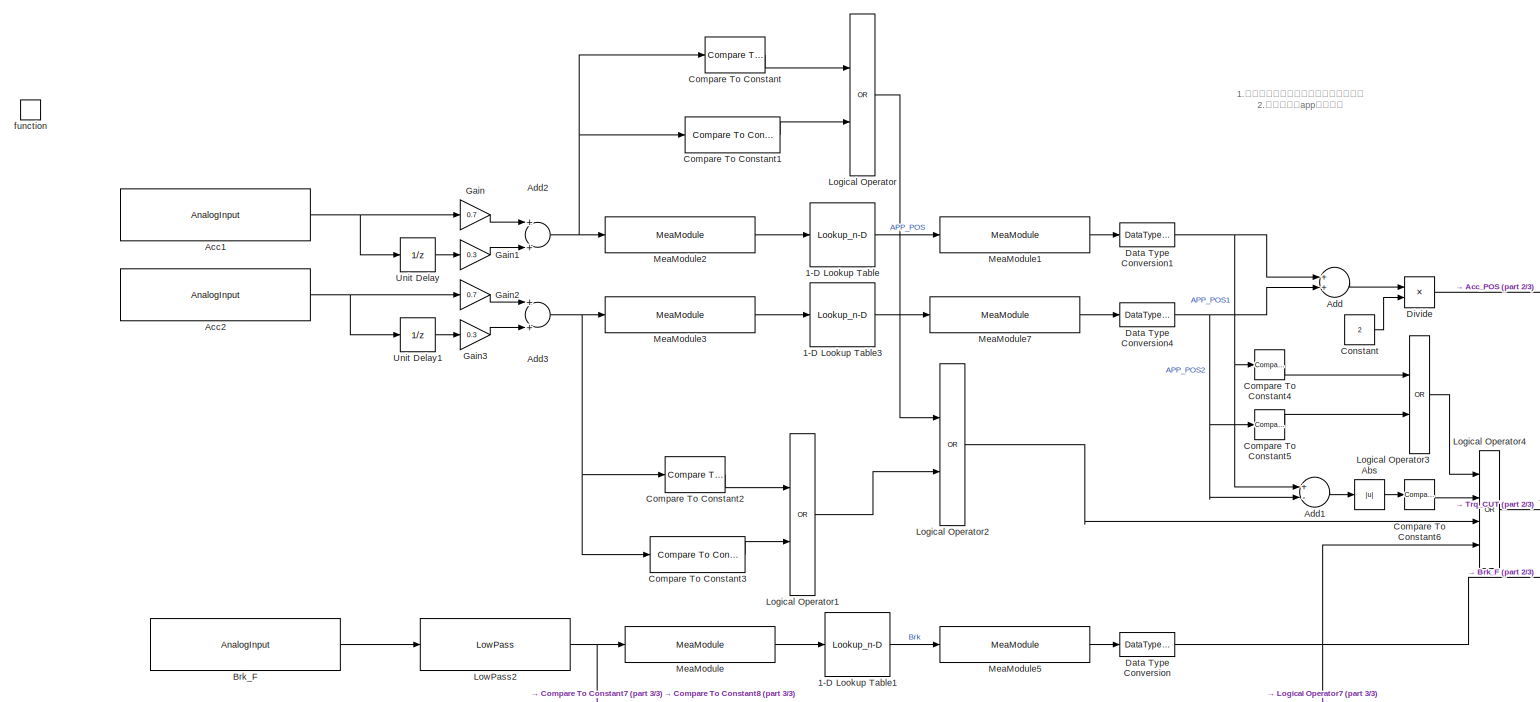
[diagram: Input/AccBrk_BUS - part 1/3, top center region]
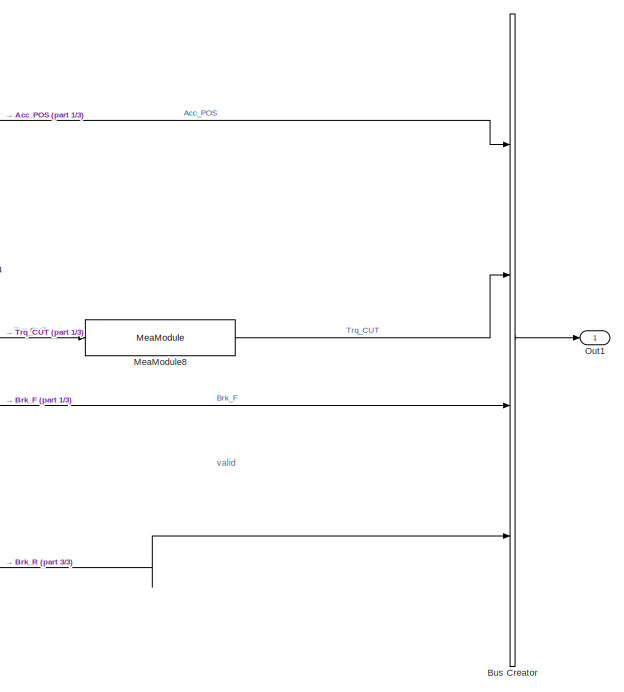
[diagram: Input/AccBrk_BUS - part 2/3, middle right region]
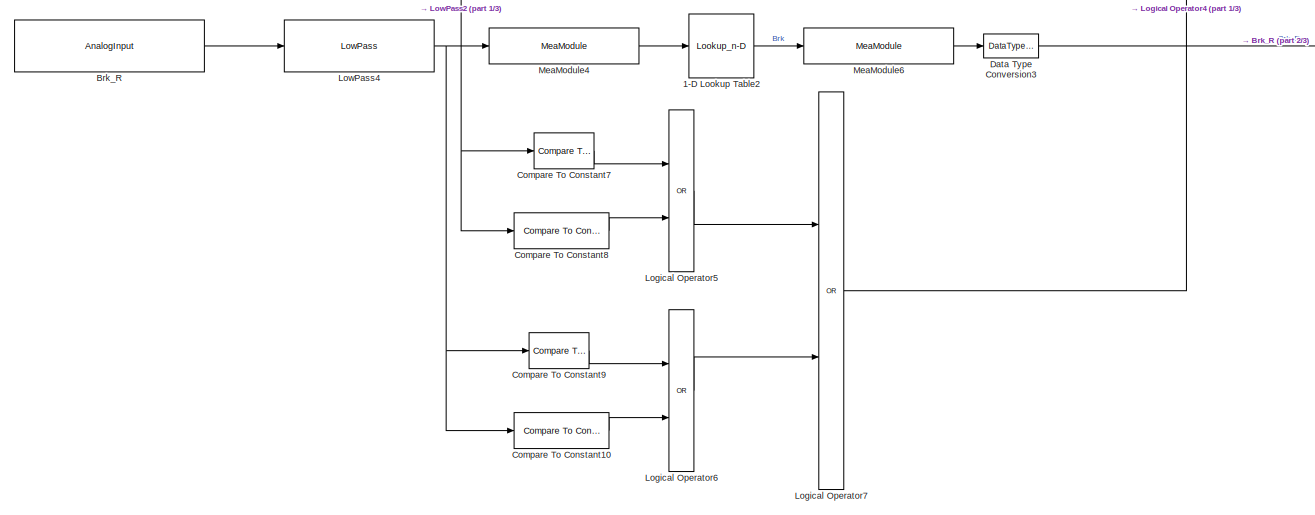
[diagram: Input/AccBrk_BUS - part 3/3, bottom center region]
BLOCK [SubSystem] Input/AccBrk_BUS
  Ports = [0, 1, 0, 1]
  RequestExecContextInheritance = off
  TreatAsAtomicUnit = on
BLOCK [Lookup_n-D] Input/AccBrk_BUS/1-D Lookup Table
  BreakpointsForDimension1 = single([1330,1590]);
  BreakpointsForDimension1DataTypeStr = single
  ExtrapMethod = Clip
  InternalRulePriority = Speed
  NumberOfTableDimensions = 1
  Ports = [1, 1]
  RndMeth = Simplest
  Table = single([0,100]);
  TableDataTypeStr = single
BLOCK [Lookup_n-D] Input/AccBrk_BUS/1-D Lookup Table1
  BreakpointsForDimension1 = single([500,4500]);
  BreakpointsForDimension1DataTypeStr = single
  ExtrapMethod = Clip
  InternalRulePriority = Speed
  NumberOfTableDimensions = 1
  Ports = [1, 1]
  RndMeth = Simplest
  Table = single([0,10000]);
  TableDataTypeStr = single
BLOCK [Lookup_n-D] Input/AccBrk_BUS/1-D Lookup Table2
  BreakpointsForDimension1 = single([530,4500]);
  BreakpointsForDimension1DataTypeStr = single
  ExtrapMethod = Clip
  InternalRulePriority = Speed
  NumberOfTableDimensions = 1
  Ports = [1, 1]
  RndMeth = Simplest
  Table = single([0,10000]);
  TableDataTypeStr = single
BLOCK [Lookup_n-D] Input/AccBrk_BUS/1-D Lookup Table3
  BreakpointsForDimension1 = single([2324,2600]);
  BreakpointsForDimension1DataTypeStr = single
  ExtrapMethod = Clip
  InternalRulePriority = Speed
  NumberOfTableDimensions = 1
  Ports = [1, 1]
  RndMeth = Simplest
  Table = single([0,100]);
  TableDataTypeStr = single
BLOCK [Abs] Input/AccBrk_BUS/Abs
  SaturateOnIntegerOverflow = off
BLOCK [Reference] Input/AccBrk_BUS/Acc1  REF=ec5744lib/RapidECU_U3/01BasicInput/AnalogInput
  Ports = [0, 1]
  SourceBlock = ec5744lib/RapidECU_U3/01BasicInput/AnalogInput
  SourceProductName = ECUCoder for MPC5744
  SourceType = RapidECU Analog Input
BLOCK [Reference] Input/AccBrk_BUS/Acc2  REF=ec5744lib/RapidECU_U3/01BasicInput/AnalogInput
  Ports = [0, 1]
  SourceBlock = ec5744lib/RapidECU_U3/01BasicInput/AnalogInput
  SourceProductName = ECUCoder for MPC5744
  SourceType = RapidECU Analog Input
BLOCK [Sum] Input/AccBrk_BUS/Add
  InputSameDT = off
  OutDataTypeStr = Inherit: Inherit via internal rule
  Ports = [2, 1]
  SaturateOnIntegerOverflow = off
BLOCK [Sum] Input/AccBrk_BUS/Add1
  InputSameDT = off
  Inputs = +-
  OutDataTypeStr = Inherit: Inherit via internal rule
  Ports = [2, 1]
  SaturateOnIntegerOverflow = off
BLOCK [Sum] Input/AccBrk_BUS/Add2
  InputSameDT = off
  OutDataTypeStr = Inherit: Inherit via internal rule
  Ports = [2, 1]
  SaturateOnIntegerOverflow = off
BLOCK [Sum] Input/AccBrk_BUS/Add3
  InputSameDT = off
  OutDataTypeStr = Inherit: Inherit via internal rule
  Ports = [2, 1]
  SaturateOnIntegerOverflow = off
BLOCK [Reference] Input/AccBrk_BUS/Brk_F  REF=ec5744lib/RapidECU_U3/01BasicInput/AnalogInput
  Ports = [0, 1]
  SourceBlock = ec5744lib/RapidECU_U3/01BasicInput/AnalogInput
  SourceProductName = ECUCoder for MPC5744
  SourceType = RapidECU Analog Input
BLOCK [Reference] Input/AccBrk_BUS/Brk_R  REF=ec5744lib/RapidECU_U3/01BasicInput/AnalogInput
  Ports = [0, 1]
  SourceBlock = ec5744lib/RapidECU_U3/01BasicInput/AnalogInput
  SourceProductName = ECUCoder for MPC5744
  SourceType = RapidECU Analog Input
BLOCK [BusCreator] Input/AccBrk_BUS/Bus Creator
  DisplayOption = bar
  InheritFromInputs = on
  Inputs = 4
  Ports = [4, 1]
BLOCK [Reference] Input/AccBrk_BUS/Compare To Constant  REF=simulink/Logic and Bit
Operations/Compare
To Constant
  Ports = [1, 1]
  SourceBlock = simulink/Logic and Bit\nOperations/Compare\nTo Constant
  SourceProductBaseCode = SL
  SourceType = Compare To Constant
BLOCK [Reference] Input/AccBrk_BUS/Compare To Constant1  REF=simulink/Logic and Bit
Operations/Compare
To Constant
  Ports = [1, 1]
  SourceBlock = simulink/Logic and Bit\nOperations/Compare\nTo Constant
  SourceProductBaseCode = SL
  SourceType = Compare To Constant
BLOCK [Reference] Input/AccBrk_BUS/Compare To Constant10  REF=simulink/Logic and Bit
Operations/Compare
To Constant
  Ports = [1, 1]
  SourceBlock = simulink/Logic and Bit\nOperations/Compare\nTo Constant
  SourceProductBaseCode = SL
  SourceType = Compare To Constant
BLOCK [Reference] Input/AccBrk_BUS/Compare To Constant2  REF=simulink/Logic and Bit
Operations/Compare
To Constant
  Ports = [1, 1]
  SourceBlock = simulink/Logic and Bit\nOperations/Compare\nTo Constant
  SourceProductBaseCode = SL
  SourceType = Compare To Constant
BLOCK [Reference] Input/AccBrk_BUS/Compare To Constant3  REF=simulink/Logic and Bit
Operations/Compare
To Constant
  Ports = [1, 1]
  SourceBlock = simulink/Logic and Bit\nOperations/Compare\nTo Constant
  SourceProductBaseCode = SL
  SourceType = Compare To Constant
BLOCK [Reference] Input/AccBrk_BUS/Compare To Constant4  REF=simulink/Logic and Bit
Operations/Compare
To Constant
  Ports = [1, 1]
  SourceBlock = simulink/Logic and Bit\nOperations/Compare\nTo Constant
  SourceProductBaseCode = SL
  SourceType = Compare To Constant
BLOCK [Reference] Input/AccBrk_BUS/Compare To Constant5  REF=simulink/Logic and Bit
Operations/Compare
To Constant
  Ports = [1, 1]
  SourceBlock = simulink/Logic and Bit\nOperations/Compare\nTo Constant
  SourceProductBaseCode = SL
  SourceType = Compare To Constant
BLOCK [Reference] Input/AccBrk_BUS/Compare To Constant6  REF=simulink/Logic and Bit
Operations/Compare
To Constant
  Ports = [1, 1]
  SourceBlock = simulink/Logic and Bit\nOperations/Compare\nTo Constant
  SourceProductBaseCode = SL
  SourceType = Compare To Constant
BLOCK [Reference] Input/AccBrk_BUS/Compare To Constant7  REF=simulink/Logic and Bit
Operations/Compare
To Constant
  Ports = [1, 1]
  SourceBlock = simulink/Logic and Bit\nOperations/Compare\nTo Constant
  SourceProductBaseCode = SL
  SourceType = Compare To Constant
BLOCK [Reference] Input/AccBrk_BUS/Compare To Constant8  REF=simulink/Logic and Bit
Operations/Compare
To Constant
  Ports = [1, 1]
  SourceBlock = simulink/Logic and Bit\nOperations/Compare\nTo Constant
  SourceProductBaseCode = SL
  SourceType = Compare To Constant
BLOCK [Reference] Input/AccBrk_BUS/Compare To Constant9  REF=simulink/Logic and Bit
Operations/Compare
To Constant
  Ports = [1, 1]
  SourceBlock = simulink/Logic and Bit\nOperations/Compare\nTo Constant
  SourceProductBaseCode = SL
  SourceType = Compare To Constant
BLOCK [Constant] Input/AccBrk_BUS/Constant
  Value = 2
BLOCK [DataTypeConversion] Input/AccBrk_BUS/Data Type Conversion
  OutDataTypeStr = single
  RndMeth = Floor
  SaturateOnIntegerOverflow = off
BLOCK [DataTypeConversion] Input/AccBrk_BUS/Data Type Conversion1
  OutDataTypeStr = single
  RndMeth = Floor
  SaturateOnIntegerOverflow = off
BLOCK [DataTypeConversion] Input/AccBrk_BUS/Data Type Conversion3
  OutDataTypeStr = single
  RndMeth = Floor
  SaturateOnIntegerOverflow = off
BLOCK [DataTypeConversion] Input/AccBrk_BUS/Data Type Conversion4
  OutDataTypeStr = single
  RndMeth = Floor
  SaturateOnIntegerOverflow = off
BLOCK [Product] Input/AccBrk_BUS/Divide
  InputSameDT = off
  Inputs = */
  OutDataTypeStr = single
  Ports = [2, 1]
  RndMeth = Floor
  SaturateOnIntegerOverflow = off
BLOCK [Gain] Input/AccBrk_BUS/Gain
  Gain = 0.7
  OutDataTypeStr = Inherit: Inherit via internal rule
  ParamDataTypeStr = Inherit: Inherit via internal rule
  SaturateOnIntegerOverflow = off
BLOCK [Gain] Input/AccBrk_BUS/Gain1
  Gain = 0.3
  OutDataTypeStr = Inherit: Inherit via internal rule
  ParamDataTypeStr = Inherit: Inherit via internal rule
  SaturateOnIntegerOverflow = off
BLOCK [Gain] Input/AccBrk_BUS/Gain2
  Gain = 0.7
  OutDataTypeStr = Inherit: Inherit via internal rule
  ParamDataTypeStr = Inherit: Inherit via internal rule
  SaturateOnIntegerOverflow = off
BLOCK [Gain] Input/AccBrk_BUS/Gain3
  Gain = 0.3
  OutDataTypeStr = Inherit: Inherit via internal rule
  ParamDataTypeStr = Inherit: Inherit via internal rule
  SaturateOnIntegerOverflow = off
BLOCK [Logic] Input/AccBrk_BUS/Logical Operator
  AllPortsSameDT = off
  Operator = OR
  OutDataTypeStr = boolean
  Ports = [2, 1]
BLOCK [Logic] Input/AccBrk_BUS/Logical Operator1
  AllPortsSameDT = off
  Operator = OR
  OutDataTypeStr = boolean
  Ports = [2, 1]
BLOCK [Logic] Input/AccBrk_BUS/Logical Operator2
  AllPortsSameDT = off
  Operator = OR
  OutDataTypeStr = boolean
  Ports = [2, 1]
BLOCK [Logic] Input/AccBrk_BUS/Logical Operator3
  AllPortsSameDT = off
  Operator = OR
  OutDataTypeStr = boolean
  Ports = [2, 1]
BLOCK [Logic] Input/AccBrk_BUS/Logical Operator4
  AllPortsSameDT = off
  Inputs = 4
  Operator = OR
  OutDataTypeStr = boolean
  Ports = [4, 1]
BLOCK [Logic] Input/AccBrk_BUS/Logical Operator5
  AllPortsSameDT = off
  Operator = OR
  OutDataTypeStr = boolean
  Ports = [2, 1]
BLOCK [Logic] Input/AccBrk_BUS/Logical Operator6
  AllPortsSameDT = off
  Operator = OR
  OutDataTypeStr = boolean
  Ports = [2, 1]
BLOCK [Logic] Input/AccBrk_BUS/Logical Operator7
  AllPortsSameDT = off
  Operator = OR
  OutDataTypeStr = boolean
  Ports = [2, 1]
BLOCK [Reference] Input/AccBrk_BUS/LowPass2  REF=ec5744lib/FrequentlyUsedModels/LowPass
  Ports = [1, 1]
  SourceBlock = ec5744lib/FrequentlyUsedModels/LowPass
  SourceProductName = ECUCoder for MPC5744
  SourceType = LowPass
BLOCK [Reference] Input/AccBrk_BUS/LowPass4  REF=ec5744lib/FrequentlyUsedModels/LowPass
  Ports = [1, 1]
  SourceBlock = ec5744lib/FrequentlyUsedModels/LowPass
  SourceProductName = ECUCoder for MPC5744
  SourceType = LowPass
BLOCK [Reference] Input/AccBrk_BUS/MeaModule  REF=ec5744lib/RapidECU_U3/07Calibration/MeaModule
  Ports = [1, 1]
  SourceBlock = ec5744lib/RapidECU_U3/07Calibration/MeaModule
  SourceProductName = ECUCoder for MPC5744
  SourceType = Measurement Module
BLOCK [Reference] Input/AccBrk_BUS/MeaModule1  REF=ec5744lib/RapidECU_U3/07Calibration/MeaModule
  Ports = [1, 1]
  SourceBlock = ec5744lib/RapidECU_U3/07Calibration/MeaModule
  SourceProductName = ECUCoder for MPC5744
  SourceType = Measurement Module
BLOCK [Reference] Input/AccBrk_BUS/MeaModule2  REF=ec5744lib/RapidECU_U3/07Calibration/MeaModule
  Ports = [1, 1]
  SourceBlock = ec5744lib/RapidECU_U3/07Calibration/MeaModule
  SourceProductName = ECUCoder for MPC5744
  SourceType = Measurement Module
BLOCK [Reference] Input/AccBrk_BUS/MeaModule3  REF=ec5744lib/RapidECU_U3/07Calibration/MeaModule
  Ports = [1, 1]
  SourceBlock = ec5744lib/RapidECU_U3/07Calibration/MeaModule
  SourceProductName = ECUCoder for MPC5744
  SourceType = Measurement Module
BLOCK [Reference] Input/AccBrk_BUS/MeaModule4  REF=ec5744lib/RapidECU_U3/07Calibration/MeaModule
  Ports = [1, 1]
  SourceBlock = ec5744lib/RapidECU_U3/07Calibration/MeaModule
  SourceProductName = ECUCoder for MPC5744
  SourceType = Measurement Module
BLOCK [Reference] Input/AccBrk_BUS/MeaModule5  REF=ec5744lib/RapidECU_U3/07Calibration/MeaModule
  Ports = [1, 1]
  SourceBlock = ec5744lib/RapidECU_U3/07Calibration/MeaModule
  SourceProductName = ECUCoder for MPC5744
  SourceType = Measurement Module
BLOCK [Reference] Input/AccBrk_BUS/MeaModule6  REF=ec5744lib/RapidECU_U3/07Calibration/MeaModule
  Ports = [1, 1]
  SourceBlock = ec5744lib/RapidECU_U3/07Calibration/MeaModule
  SourceProductName = ECUCoder for MPC5744
  SourceType = Measurement Module
BLOCK [Reference] Input/AccBrk_BUS/MeaModule7  REF=ec5744lib/RapidECU_U3/07Calibration/MeaModule
  Ports = [1, 1]
  SourceBlock = ec5744lib/RapidECU_U3/07Calibration/MeaModule
  SourceProductName = ECUCoder for MPC5744
  SourceType = Measurement Module
BLOCK [Reference] Input/AccBrk_BUS/MeaModule8  REF=ec5744lib/RapidECU_U3/07Calibration/MeaModule
  Ports = [1, 1]
  SourceBlock = ec5744lib/RapidECU_U3/07Calibration/MeaModule
  SourceProductName = ECUCoder for MPC5744
  SourceType = Measurement Module
BLOCK [Outport] Input/AccBrk_BUS/Out1
  IconDisplay = Port number
BLOCK [UnitDelay] Input/AccBrk_BUS/Unit Delay
  InputProcessing = Elements as channels (sample based)
  SampleTime = -1
BLOCK [UnitDelay] Input/AccBrk_BUS/Unit Delay1
  InputProcessing = Elements as channels (sample based)
  SampleTime = -1
BLOCK [TriggerPort] Input/AccBrk_BUS/function
  Ports = []
  StatesWhenEnabling = held
  TriggerType = function-call
  VariantControl = (inherit)
BLOCK [BusCreator] Input/Bus Creator
  DisplayOption = bar
  InheritFromInputs = on
  Inputs = 4
  Ports = [4, 1]
BLOCK [SubSystem] Input/Function-Call Subsystem1
  Ports = [0, 1, 0, 1]
  RequestExecContextInheritance = off
  TreatAsAtomicUnit = on
BLOCK [Constant] Input/Function-Call Subsystem1/Constant
  Value = 24
BLOCK [Constant] Input/Function-Call Subsystem1/Constant2
  Value = 1.44
BLOCK [Constant] Input/Function-Call Subsystem1/Constant3
BLOCK [Product] Input/Function-Call Subsystem1/Divide
  InputSameDT = off
  Inputs = */
  OutDataTypeStr = Inherit: Inherit via internal rule
  Ports = [2, 1]
  RndMeth = Floor
  SaturateOnIntegerOverflow = off
BLOCK [Product] Input/Function-Call Subsystem1/Divide1
  InputSameDT = off
  Inputs = */
  OutDataTypeStr = Inherit: Inherit via internal rule
  Ports = [2, 1]
  RndMeth = Floor
  SaturateOnIntegerOverflow = off
BLOCK [Reference] Input/Function-Call Subsystem1/FrequencyRead  REF=ec5744lib/RapidECU_U3/01BasicInput/FrequencyRead
  Ports = [0, 1]
  SourceBlock = ec5744lib/RapidECU_U3/01BasicInput/FrequencyRead
  SourceProductName = ECUCoder for MPC5744
  SourceType = RapidECU Frequency Read
BLOCK [Gain] Input/Function-Call Subsystem1/Gain
  Gain = 3.6
  OutDataTypeStr = Inherit: Inherit via internal rule
  ParamDataTypeStr = Inherit: Inherit via internal rule
  SaturateOnIntegerOverflow = off
BLOCK [MinMax] Input/Function-Call Subsystem1/Max1
  Function = max
  InputSameDT = off
  Inputs = 2
  Ports = [2, 1]
  SaturateOnIntegerOverflow = off
BLOCK [Reference] Input/Function-Call Subsystem1/MeaModule1  REF=ec5744lib/RapidECU_U3/07Calibration/MeaModule
  Ports = [1, 1]
  SourceBlock = ec5744lib/RapidECU_U3/07Calibration/MeaModule
  SourceProductName = ECUCoder for MPC5744
  SourceType = Measurement Module
BLOCK [Outport] Input/Function-Call Subsystem1/VehSpd_kph
  IconDisplay = Port number
BLOCK [TriggerPort] Input/Function-Call Subsystem1/function
  Ports = []
  StatesWhenEnabling = held
  TriggerType = function-call
  VariantControl = Variant
BLOCK [SubSystem] Input/MCU_RECIEVE
  Ports = [0, 1, 0, 1]
  RequestExecContextInheritance = off
  TreatAsAtomicUnit = on
BLOCK [BusCreator] Input/MCU_RECIEVE/Bus Creator2
  DisplayOption = bar
  InheritFromInputs = on
  Inputs = 2
  Ports = [2, 1]
BLOCK [Reference] Input/MCU_RECIEVE/CANReceive1  REF=ec5744lib/RapidECU_U3/04CANCommunication/CANReceive
  Ports = [0, 5]
  SourceBlock = ec5744lib/RapidECU_U3/04CANCommunication/CANReceive
  SourceProductName = ECUCoder for MPC5744
  SourceType = MPC5744 CAN Receive
BLOCK [Reference] Input/MCU_RECIEVE/CANReceive3  REF=ec5744lib/RapidECU_U3/04CANCommunication/CANReceive
  Ports = [0, 5]
  SourceBlock = ec5744lib/RapidECU_U3/04CANCommunication/CANReceive
  SourceProductName = ECUCoder for MPC5744
  SourceType = MPC5744 CAN Receive
BLOCK [Outport] Input/MCU_RECIEVE/MCU
  IconDisplay = Port number
  VectorParamsAs1DForOutWhenUnconnected = on
BLOCK [SubSystem] Input/MCU_RECIEVE/MCU_pwr
  Ports = [3, 1, 0, 1]
  RequestExecContextInheritance = off
  TreatAsAtomicUnit = on
BLOCK [BusCreator] Input/MCU_RECIEVE/MCU_pwr/Bus Creator3
  DisplayOption = bar
  InheritFromInputs = on
  Inputs = 6
  Ports = [6, 1]
BLOCK [Inport] Input/MCU_RECIEVE/MCU_pwr/CANOK
  IconDisplay = Port number
BLOCK [Inport] Input/MCU_RECIEVE/MCU_pwr/ID
  IconDisplay = Port number
  Port = 2
BLOCK [SubSystem] Input/MCU_RECIEVE/MCU_pwr/MCU_VCUMeter1
  Ports = [2, 6, 1]
  RequestExecContextInheritance = off
  TreatAsAtomicUnit = on
BLOCK [Reference] Input/MCU_RECIEVE/MCU_pwr/MCU_VCUMeter1/AC_current  REF=ec5744lib/RapidECU_U3/09MemoryManagement/EEPROMWrite
  Ports = [1]
  SourceBlock = ec5744lib/RapidECU_U3/09MemoryManagement/EEPROMWrite
  SourceProductName = ECUCoder for MPC5744
  SourceType = MPC5744 EEPROM Write
BLOCK [Outport] Input/MCU_RECIEVE/MCU_pwr/MCU_VCUMeter1/AC_current 
  IconDisplay = Port number
  VectorParamsAs1DForOutWhenUnconnected = on
BLOCK [Reference] Input/MCU_RECIEVE/MCU_pwr/MCU_VCUMeter1/CAN Unpack  REF=canmsglib/CAN Unpack
  Ports = [1, 5]
  SourceBlock = canmsglib/CAN Unpack
  SourceProductBaseCode = XP,ME,VN
  SourceType = CAN Unpack
BLOCK [Reference] Input/MCU_RECIEVE/MCU_pwr/MCU_VCUMeter1/CANUnPackMessage4  REF=ec5744lib/RapidECU_U3/04CANCommunication/CANUnPackMessage
  Ports = [2, 1]
  SourceBlock = ec5744lib/RapidECU_U3/04CANCommunication/CANUnPackMessage
  SourceProductName = ECUCoder for MPC5744
  SourceType = CAN Unpack Message Receive
BLOCK [Constant] Input/MCU_RECIEVE/MCU_pwr/MCU_VCUMeter1/Constant
  Value = 1000
BLOCK [Reference] Input/MCU_RECIEVE/MCU_pwr/MCU_VCUMeter1/DC_current  REF=ec5744lib/RapidECU_U3/09MemoryManagement/EEPROMWrite
  Ports = [1]
  SourceBlock = ec5744lib/RapidECU_U3/09MemoryManagement/EEPROMWrite
  SourceProductName = ECUCoder for MPC5744
  SourceType = MPC5744 EEPROM Write
BLOCK [Product] Input/MCU_RECIEVE/MCU_pwr/MCU_VCUMeter1/Divide
  InputSameDT = off
  Inputs = */
  OutDataTypeStr = Inherit: Inherit via internal rule
  Ports = [2, 1]
  RndMeth = Floor
  SaturateOnIntegerOverflow = off
BLOCK [EnablePort] Input/MCU_RECIEVE/MCU_pwr/MCU_VCUMeter1/Enable
  Ports = []
BLOCK [Inport] Input/MCU_RECIEVE/MCU_pwr/MCU_VCUMeter1/ID
  IconDisplay = Port number
BLOCK [Outport] Input/MCU_RECIEVE/MCU_pwr/MCU_VCUMeter1/MCU_temp
  IconDisplay = Port number
  Port = 2
  VectorParamsAs1DForOutWhenUnconnected = on
BLOCK [Reference] Input/MCU_RECIEVE/MCU_pwr/MCU_VCUMeter1/MCU_temp   REF=ec5744lib/RapidECU_U3/09MemoryManagement/EEPROMWrite
  Ports = [1]
  SourceBlock = ec5744lib/RapidECU_U3/09MemoryManagement/EEPROMWrite
  SourceProductName = ECUCoder for MPC5744
  SourceType = MPC5744 EEPROM Write
BLOCK [Reference] Input/MCU_RECIEVE/MCU_pwr/MCU_VCUMeter1/MeaModule  REF=ec5744lib/RapidECU_U3/07Calibration/MeaModule
  Ports = [1, 1]
  SourceBlock = ec5744lib/RapidECU_U3/07Calibration/MeaModule
  SourceProductName = ECUCoder for MPC5744
  SourceType = Measurement Module
BLOCK [Reference] Input/MCU_RECIEVE/MCU_pwr/MCU_VCUMeter1/MeaModule1  REF=ec5744lib/RapidECU_U3/07Calibration/MeaModule
  Ports = [1, 1]
  SourceBlock = ec5744lib/RapidECU_U3/07Calibration/MeaModule
  SourceProductName = ECUCoder for MPC5744
  SourceType = Measurement Module
BLOCK [Reference] Input/MCU_RECIEVE/MCU_pwr/MCU_VCUMeter1/MeaModule2  REF=ec5744lib/RapidECU_U3/07Calibration/MeaModule
  Ports = [1, 1]
  SourceBlock = ec5744lib/RapidECU_U3/07Calibration/MeaModule
  SourceProductName = ECUCoder for MPC5744
  SourceType = Measurement Module
BLOCK [Reference] Input/MCU_RECIEVE/MCU_pwr/MCU_VCUMeter1/MeaModule3  REF=ec5744lib/RapidECU_U3/07Calibration/MeaModule
  Ports = [1, 1]
  SourceBlock = ec5744lib/RapidECU_U3/07Calibration/MeaModule
  SourceProductName = ECUCoder for MPC5744
  SourceType = Measurement Module
BLOCK [Reference] Input/MCU_RECIEVE/MCU_pwr/MCU_VCUMeter1/MeaModule4  REF=ec5744lib/RapidECU_U3/07Calibration/MeaModule
  Ports = [1, 1]
  SourceBlock = ec5744lib/RapidECU_U3/07Calibration/MeaModule
  SourceProductName = ECUCoder for MPC5744
  SourceType = Measurement Module
BLOCK [Reference] Input/MCU_RECIEVE/MCU_pwr/MCU_VCUMeter1/Motor_temp  REF=ec5744lib/RapidECU_U3/09MemoryManagement/EEPROMWrite
  Ports = [1]
  SourceBlock = ec5744lib/RapidECU_U3/09MemoryManagement/EEPROMWrite
  SourceProductName = ECUCoder for MPC5744
  SourceType = MPC5744 EEPROM Write
BLOCK [Inport] Input/MCU_RECIEVE/MCU_pwr/MCU_VCUMeter1/Msg
  IconDisplay = Port number
  Port = 2
BLOCK [Product] Input/MCU_RECIEVE/MCU_pwr/MCU_VCUMeter1/Product
  InputSameDT = off
  OutDataTypeStr = Inherit: Inherit via internal rule
  Ports = [2, 1]
  RndMeth = Floor
  SaturateOnIntegerOverflow = off
BLOCK [Reference] Input/MCU_RECIEVE/MCU_pwr/MCU_VCUMeter1/VOL  REF=ec5744lib/RapidECU_U3/09MemoryManagement/EEPROMWrite
  Ports = [1]
  SourceBlock = ec5744lib/RapidECU_U3/09MemoryManagement/EEPROMWrite
  SourceProductName = ECUCoder for MPC5744
  SourceType = MPC5744 EEPROM Write
BLOCK [Outport] Input/MCU_RECIEVE/MCU_pwr/MCU_VCUMeter1/current
  IconDisplay = Port number
  Port = 3
  VectorParamsAs1DForOutWhenUnconnected = on
BLOCK [Outport] Input/MCU_RECIEVE/MCU_pwr/MCU_VCUMeter1/motor_temp
  IconDisplay = Port number
  Port = 4
  VectorParamsAs1DForOutWhenUnconnected = on
BLOCK [Outport] Input/MCU_RECIEVE/MCU_pwr/MCU_VCUMeter1/power
  IconDisplay = Port number
  Port = 6
  VectorParamsAs1DForOutWhenUnconnected = on
BLOCK [Outport] Input/MCU_RECIEVE/MCU_pwr/MCU_VCUMeter1/voltage
  IconDisplay = Port number
  Port = 5
  VectorParamsAs1DForOutWhenUnconnected = on
BLOCK [Outport] Input/MCU_RECIEVE/MCU_pwr/MCU_pwr
  IconDisplay = Port number
  VectorParamsAs1DForOutWhenUnconnected = on
BLOCK [Inport] Input/MCU_RECIEVE/MCU_pwr/Msg
  IconDisplay = Port number
  Port = 3
BLOCK [TriggerPort] Input/MCU_RECIEVE/MCU_pwr/function
  Ports = []
  StatesWhenEnabling = held
  TriggerType = function-call
  VariantControl = (inherit)
BLOCK [SubSystem] Input/MCU_RECIEVE/MCU_state
  Ports = [3, 1, 0, 1]
  RequestExecContextInheritance = off
  TreatAsAtomicUnit = on
BLOCK [BusCreator] Input/MCU_RECIEVE/MCU_state/Bus Creator3
  DisplayOption = bar
  InheritFromInputs = on
  Inputs = 16
  Ports = [16, 1]
BLOCK [Inport] Input/MCU_RECIEVE/MCU_state/CANOK
  IconDisplay = Port number
BLOCK [Inport] Input/MCU_RECIEVE/MCU_state/ID
  IconDisplay = Port number
  Port = 2
BLOCK [SubSystem] Input/MCU_RECIEVE/MCU_state/MCU_state
  Ports = [2, 16, 1]
  RequestExecContextInheritance = off
  TreatAsAtomicUnit = on
BLOCK [Outport] Input/MCU_RECIEVE/MCU_state/MCU_state/12V_error
  IconDisplay = Port number
  VectorParamsAs1DForOutWhenUnconnected = on
BLOCK [Reference] Input/MCU_RECIEVE/MCU_state/MCU_state/CAN Unpack  REF=canmsglib/CAN Unpack
  Ports = [1, 15]
  SourceBlock = canmsglib/CAN Unpack
  SourceProductBaseCode = XP,ME,VN
  SourceType = CAN Unpack
BLOCK [Reference] Input/MCU_RECIEVE/MCU_state/MCU_state/CANUnPackMessage4  REF=ec5744lib/RapidECU_U3/04CANCommunication/CANUnPackMessage
  Ports = [2, 1]
  SourceBlock = ec5744lib/RapidECU_U3/04CANCommunication/CANUnPackMessage
  SourceProductName = ECUCoder for MPC5744
  SourceType = CAN Unpack Message Receive
BLOCK [EnablePort] Input/MCU_RECIEVE/MCU_state/MCU_state/Enable
  Ports = []
BLOCK [Inport] Input/MCU_RECIEVE/MCU_state/MCU_state/ID
  IconDisplay = Port number
BLOCK [Outport] Input/MCU_RECIEVE/MCU_state/MCU_state/MCU_temp_warn
  IconDisplay = Port number
  Port = 5
  VectorParamsAs1DForOutWhenUnconnected = on
BLOCK [Reference] Input/MCU_RECIEVE/MCU_state/MCU_state/MeaModule  REF=ec5744lib/RapidECU_U3/07Calibration/MeaModule
  Ports = [1, 1]
  SourceBlock = ec5744lib/RapidECU_U3/07Calibration/MeaModule
  SourceProductName = ECUCoder for MPC5744
  SourceType = Measurement Module
BLOCK [Reference] Input/MCU_RECIEVE/MCU_state/MCU_state/MeaModule1  REF=ec5744lib/RapidECU_U3/07Calibration/MeaModule
  Ports = [1, 1]
  SourceBlock = ec5744lib/RapidECU_U3/07Calibration/MeaModule
  SourceProductName = ECUCoder for MPC5744
  SourceType = Measurement Module
BLOCK [Reference] Input/MCU_RECIEVE/MCU_state/MCU_state/MeaModule2  REF=ec5744lib/RapidECU_U3/07Calibration/MeaModule
  Ports = [1, 1]
  SourceBlock = ec5744lib/RapidECU_U3/07Calibration/MeaModule
  SourceProductName = ECUCoder for MPC5744
  SourceType = Measurement Module
BLOCK [Reference] Input/MCU_RECIEVE/MCU_state/MCU_state/MeaModule3  REF=ec5744lib/RapidECU_U3/07Calibration/MeaModule
  Ports = [1, 1]
  SourceBlock = ec5744lib/RapidECU_U3/07Calibration/MeaModule
  SourceProductName = ECUCoder for MPC5744
  SourceType = Measurement Module
BLOCK [Reference] Input/MCU_RECIEVE/MCU_state/MCU_state/MeaModule4  REF=ec5744lib/RapidECU_U3/07Calibration/MeaModule
  Ports = [1, 1]
  SourceBlock = ec5744lib/RapidECU_U3/07Calibration/MeaModule
  SourceProductName = ECUCoder for MPC5744
  SourceType = Measurement Module
BLOCK [Reference] Input/MCU_RECIEVE/MCU_state/MCU_state/MeaModule5  REF=ec5744lib/RapidECU_U3/07Calibration/MeaModule
  Ports = [1, 1]
  SourceBlock = ec5744lib/RapidECU_U3/07Calibration/MeaModule
  SourceProductName = ECUCoder for MPC5744
  SourceType = Measurement Module
BLOCK [Reference] Input/MCU_RECIEVE/MCU_state/MCU_state/MeaModule6  REF=ec5744lib/RapidECU_U3/07Calibration/MeaModule
  Ports = [1, 1]
  SourceBlock = ec5744lib/RapidECU_U3/07Calibration/MeaModule
  SourceProductName = ECUCoder for MPC5744
  SourceType = Measurement Module
BLOCK [Inport] Input/MCU_RECIEVE/MCU_state/MCU_state/Msg
  IconDisplay = Port number
  Port = 2
BLOCK [Outport] Input/MCU_RECIEVE/MCU_state/MCU_state/RPM
  IconDisplay = Port number
  Port = 14
  VectorParamsAs1DForOutWhenUnconnected = on
BLOCK [Outport] Input/MCU_RECIEVE/MCU_state/MCU_state/Spd_R
  IconDisplay = Port number
  Port = 16
  VectorParamsAs1DForOutWhenUnconnected = on
BLOCK [Outport] Input/MCU_RECIEVE/MCU_state/MCU_state/alarm
  IconDisplay = Port number
  Port = 2
  VectorParamsAs1DForOutWhenUnconnected = on
BLOCK [Outport] Input/MCU_RECIEVE/MCU_state/MCU_state/controller_ready
  IconDisplay = Port number
  Port = 4
  VectorParamsAs1DForOutWhenUnconnected = on
BLOCK [Outport] Input/MCU_RECIEVE/MCU_state/MCU_state/mode_cmd8
  IconDisplay = Port number
  Port = 6
  VectorParamsAs1DForOutWhenUnconnected = on
BLOCK [Outport] Input/MCU_RECIEVE/MCU_state/MCU_state/motor_temp_warn
  IconDisplay = Port number
  Port = 7
  VectorParamsAs1DForOutWhenUnconnected = on
BLOCK [Outport] Input/MCU_RECIEVE/MCU_state/MCU_state/overcur
  IconDisplay = Port number
  Port = 8
  VectorParamsAs1DForOutWhenUnconnected = on
BLOCK [Outport] Input/MCU_RECIEVE/MCU_state/MCU_state/overvol
  IconDisplay = Port number
  Port = 10
  VectorParamsAs1DForOutWhenUnconnected = on
BLOCK [Outport] Input/MCU_RECIEVE/MCU_state/MCU_state/pow_lim_warn
  IconDisplay = Port number
  Port = 9
  VectorParamsAs1DForOutWhenUnconnected = on
BLOCK [Outport] Input/MCU_RECIEVE/MCU_state/MCU_state/precharge
  IconDisplay = Port number
  Port = 11
  VectorParamsAs1DForOutWhenUnconnected = on
BLOCK [Outport] Input/MCU_RECIEVE/MCU_state/MCU_state/rotation_warn
  IconDisplay = Port number
  Port = 12
  VectorParamsAs1DForOutWhenUnconnected = on
BLOCK [Gain] Input/MCU_RECIEVE/MCU_state/MCU_state/rpm2kph
  Gain = 0.0211
  OutDataTypeStr = Inherit: Inherit via internal rule
  ParamDataTypeStr = Inherit: Inherit via internal rule
  SaturateOnIntegerOverflow = off
BLOCK [Outport] Input/MCU_RECIEVE/MCU_state/MCU_state/selfcech
  IconDisplay = Port number
  Port = 13
  VectorParamsAs1DForOutWhenUnconnected = on
BLOCK [Outport] Input/MCU_RECIEVE/MCU_state/MCU_state/torque
  IconDisplay = Port number
  Port = 15
  VectorParamsAs1DForOutWhenUnconnected = on
BLOCK [Outport] Input/MCU_RECIEVE/MCU_state/MCU_state/undervol
  IconDisplay = Port number
  Port = 3
  VectorParamsAs1DForOutWhenUnconnected = on
BLOCK [Inport] Input/MCU_RECIEVE/MCU_state/Msg
  IconDisplay = Port number
  Port = 3
BLOCK [Outport] Input/MCU_RECIEVE/MCU_state/Out1
  IconDisplay = Port number
BLOCK [TriggerPort] Input/MCU_RECIEVE/MCU_state/function
  Ports = []
  StatesWhenEnabling = held
  TriggerType = function-call
  VariantControl = (inherit)
BLOCK [Terminator] Input/MCU_RECIEVE/Terminator1
BLOCK [Terminator] Input/MCU_RECIEVE/Terminator3
BLOCK [TriggerPort] Input/MCU_RECIEVE/function
  Ports = []
  StatesWhenEnabling = held
  TriggerType = function-call
  VariantControl = (inherit)
BLOCK [Outport] Input/Out1
  IconDisplay = Port number
  VectorParamsAs1DForOutWhenUnconnected = on
BLOCK [SubSystem] Input/key
  Ports = [0, 1, 0, 1]
  RequestExecContextInheritance = off
  TreatAsAtomicUnit = on
BLOCK [BusCreator] Input/key/Bus Creator
  DisplayOption = bar
  InheritFromInputs = on
  Inputs = 2
  Ports = [2, 1]
BLOCK [Reference] Input/key/KL15Monitor  REF=ec5744lib/RapidECU_U3/05PowerManagement/KL15Monitor
  Ports = [0, 1]
  SourceBlock = ec5744lib/RapidECU_U3/05PowerManagement/KL15Monitor
  SourceProductName = ECUCoder for MPC5744
  SourceType = RapidECU Key Switch (KL15) Monitor
BLOCK [Logic] Input/key/Logical Operator
  AllPortsSameDT = off
  Operator = NOT
  OutDataTypeStr = boolean
  Ports = [1, 1]
BLOCK [Reference] Input/key/MeaModule  REF=ec5744lib/RapidECU_U3/07Calibration/MeaModule
  Ports = [1, 1]
  SourceBlock = ec5744lib/RapidECU_U3/07Calibration/MeaModule
  SourceProductName = ECUCoder for MPC5744
  SourceType = Measurement Module
BLOCK [Reference] Input/key/SwitchInput  REF=ec5744lib/RapidECU_U3/01BasicInput/SwitchInput
  Ports = [0, 1]
  SourceBlock = ec5744lib/RapidECU_U3/01BasicInput/SwitchInput
  SourceProductName = ECUCoder for MPC5744
  SourceType = RapidECU Switch Input
BLOCK [TriggerPort] Input/key/function
  Ports = []
  StatesWhenEnabling = held
  TriggerType = function-call
  VariantControl = (inherit)
BLOCK [Outport] Input/key/key
  IconDisplay = Port number
BLOCK [SubSystem] Output
  Ports = [1]
  RequestExecContextInheritance = off
BLOCK [Reference] Output/10ms  REF=simulink/Ports &
Subsystems/Function-Call
Generator
  Ports = [0, 1]
  SourceBlock = simulink/Ports &\nSubsystems/Function-Call\nGenerator
  SourceProductBaseCode = SL
  SourceType = Function-Call Generator
BLOCK [Reference] Output/10ms1  REF=simulink/Ports &
Subsystems/Function-Call
Generator
  Ports = [0, 1]
  SourceBlock = simulink/Ports &\nSubsystems/Function-Call\nGenerator
  SourceProductBaseCode = SL
  SourceType = Function-Call Generator
BLOCK [Reference] Output/10ms3  REF=simulink/Ports &
Subsystems/Function-Call
Generator
  Ports = [0, 1]
  SourceBlock = simulink/Ports &\nSubsystems/Function-Call\nGenerator
  SourceProductBaseCode = SL
  SourceType = Function-Call Generator
BLOCK [Reference] Output/10ms6  REF=simulink/Ports &
Subsystems/Function-Call
Generator
  Ports = [0, 1]
  SourceBlock = simulink/Ports &\nSubsystems/Function-Call\nGenerator
  SourceProductBaseCode = SL
  SourceType = Function-Call Generator
BLOCK [SubSystem] Output/Beeper
  Ports = [1, 0, 0, 1]
  RequestExecContextInheritance = off
  TreatAsAtomicUnit = on
BLOCK [Inport] Output/Beeper/Beeper_state
  IconDisplay = Port number
BLOCK [Reference] Output/Beeper/MeaModule  REF=ec5744lib/RapidECU_U3/07Calibration/MeaModule
  Ports = [1, 1]
  SourceBlock = ec5744lib/RapidECU_U3/07Calibration/MeaModule
  SourceProductName = ECUCoder for MPC5744
  SourceType = Measurement Module
BLOCK [Reference] Output/Beeper/PowerDriverSwitch(HS)  REF=ec5744lib/RapidECU_U3/02PowerDriverSwitch/PowerDriverSwitch(HS)
  Ports = [1]
  SourceBlock = ec5744lib/RapidECU_U3/02PowerDriverSwitch/PowerDriverSwitch(HS)
  SourceProductName = ECUCoder for MPC5744
  SourceType = RapidECU Power Driver Switch
BLOCK [TriggerPort] Output/Beeper/function
  Ports = []
  StatesWhenEnabling = held
  TriggerType = function-call
  VariantControl = (inherit)
BLOCK [BusSelector] Output/Bus Selector
  OutputAsBus = off
  OutputSignals = signal3.signal2.APPBrk_BUS.Trq_CUT,Motor_CtrlBus,WP_FAN,signal3.VehState.BeeperSt,signal3
  Ports = [1, 5]
BLOCK [Inport] Output/In1
  IconDisplay = Port number
BLOCK [SubSystem] Output/VCU2CLUSTER
  Ports = [2, 0, 0, 1]
  RequestExecContextInheritance = off
  TreatAsAtomicUnit = on
BLOCK [BusSelector] Output/VCU2CLUSTER/Bus Selector
  OutputAsBus = off
  OutputSignals = signal2.APPBrk_BUS.Brk_F,signal2.MCU.MCU_state.Trq,signal2.APPBrk_BUS.Acc_POS,signal2.MCU.MCU_pwr.motor_temp,signal2.VehSpd_FLkph,signal2.MCU.MCU_state.Spd_R_kph,signal2.APPBrk_BUS.Brk_R,signal2.MCU.MCU_state.RPM
  Ports = [1, 8]
BLOCK [BusSelector] Output/VCU2CLUSTER/Bus Selector1
  OutputAsBus = off
  OutputSignals = TCS_TrqRequestFinal_Nm,TCS_flgActv
  Ports = [1, 2]
BLOCK [Reference] Output/VCU2CLUSTER/CAN Pack  REF=canmsglib/CAN Pack
  Ports = [8, 1]
  SourceBlock = canmsglib/CAN Pack
  SourceProductBaseCode = XP,ME,VN
  SourceType = CAN Pack
BLOCK [Reference] Output/VCU2CLUSTER/CAN Pack1  REF=canmsglib/CAN Pack
  Ports = [2, 1]
  SourceBlock = canmsglib/CAN Pack
  SourceProductBaseCode = XP
  SourceProductName = Simulink Real-Time
  SourceType = CAN Pack
BLOCK [Reference] Output/VCU2CLUSTER/CANPackMessage  REF=ec5744lib/RapidECU_U3/04CANCommunication/CANPackMessage
  Ports = [1, 1]
  SourceBlock = ec5744lib/RapidECU_U3/04CANCommunication/CANPackMessage
  SourceProductName = ECUCoder for MPC5744
  SourceType = CAN Pack Message Transmit
BLOCK [Reference] Output/VCU2CLUSTER/CANPackMessage1  REF=ec5744lib/HYFCU001/04CANCommunication/CANPackMessage
  Ports = [1, 1]
  SourceBlock = ec5744lib/HYFCU001/04CANCommunication/CANPackMessage
  SourceProductName = ECUCoder for MPC5744
  SourceType = CAN Pack Message Transmit
BLOCK [Reference] Output/VCU2CLUSTER/CANTransmit  REF=ec5744lib/RapidECU_U3/04CANCommunication/CANTransmit
  Ports = [1, 1]
  SourceBlock = ec5744lib/RapidECU_U3/04CANCommunication/CANTransmit
  SourceProductName = ECUCoder for MPC5744
  SourceType = MPC5744 CAN Transmit
BLOCK [Reference] Output/VCU2CLUSTER/CANTransmit1  REF=ec5744lib/RapidECU_U3/04CANCommunication/CANTransmit
  Ports = [1, 1]
  SourceBlock = ec5744lib/RapidECU_U3/04CANCommunication/CANTransmit
  SourceProductName = ECUCoder for MPC5744
  SourceType = MPC5744 CAN Transmit
BLOCK [Inport] Output/VCU2CLUSTER/In1
  IconDisplay = Port number
BLOCK [Inport] Output/VCU2CLUSTER/TCS
  IconDisplay = Port number
  Port = 2
BLOCK [Terminator] Output/VCU2CLUSTER/Terminator1
BLOCK [Terminator] Output/VCU2CLUSTER/Terminator3
BLOCK [TriggerPort] Output/VCU2CLUSTER/function
  Ports = []
  StatesWhenEnabling = held
  TriggerType = function-call
  VariantControl = Variant
BLOCK [SubSystem] Output/VCU2MCU
  Ports = [2, 0, 0, 1]
  RequestExecContextInheritance = off
  TreatAsAtomicUnit = on
BLOCK [Reference] Output/VCU2MCU/CAN Pack1  REF=canmsglib/CAN Pack
  Ports = [4, 1]
  SourceBlock = canmsglib/CAN Pack
  SourceProductBaseCode = XP,ME,VN
  SourceType = CAN Pack
BLOCK [Reference] Output/VCU2MCU/CANPackMessage  REF=ec5744lib/RapidECU_U3/04CANCommunication/CANPackMessage
  Ports = [1, 1]
  SourceBlock = ec5744lib/RapidECU_U3/04CANCommunication/CANPackMessage
  SourceProductName = ECUCoder for MPC5744
  SourceType = CAN Pack Message Transmit
BLOCK [Reference] Output/VCU2MCU/CANTransmit  REF=ec5744lib/RapidECU_U3/04CANCommunication/CANTransmit
  Ports = [1, 1]
  SourceBlock = ec5744lib/RapidECU_U3/04CANCommunication/CANTransmit
  SourceProductName = ECUCoder for MPC5744
  SourceType = MPC5744 CAN Transmit
BLOCK [DataTypeConversion] Output/VCU2MCU/Cast To Boolean4
  OutDataTypeStr = uint16
  RndMeth = Floor
  SaturateOnIntegerOverflow = off
BLOCK [DataTypeConversion] Output/VCU2MCU/Cast To Boolean6
  OutDataTypeStr = uint16
  RndMeth = Floor
  SaturateOnIntegerOverflow = off
BLOCK [Constant] Output/VCU2MCU/Constant13
  Value = 2
BLOCK [Constant] Output/VCU2MCU/Constant17
  Value = 0
BLOCK [Constant] Output/VCU2MCU/Constant19
  Value = 2
BLOCK [Constant] Output/VCU2MCU/Constant20
  Value = 0
BLOCK [DataTypeConversion] Output/VCU2MCU/Data Type Conversion1
  OutDataTypeStr = single
  RndMeth = Floor
  SaturateOnIntegerOverflow = off
BLOCK [DataTypeConversion] Output/VCU2MCU/Data Type Conversion2
  OutDataTypeStr = int32
  RndMeth = Floor
  SaturateOnIntegerOverflow = off
BLOCK [Reference] Output/VCU2MCU/MeaModule1  REF=ec5744lib/HYFCU001/07Calibration/MeaModule
  Ports = [1, 1]
  SourceBlock = ec5744lib/HYFCU001/07Calibration/MeaModule
  SourceProductName = ECUCoder for MPC5744
  SourceType = Measurement Module
BLOCK [Reference] Output/VCU2MCU/MeaModule2  REF=ec5744lib/HYFCU001/07Calibration/MeaModule
  Ports = [1, 1]
  SourceBlock = ec5744lib/HYFCU001/07Calibration/MeaModule
  SourceProductName = ECUCoder for MPC5744
  SourceType = Measurement Module
BLOCK [Inport] Output/VCU2MCU/Motor_CtrlBus
  IconDisplay = Port number
  Port = 2
BLOCK [Reference] Output/VCU2MCU/Ramp  REF=simulink/Sources/Ramp
  Commented = on
  Ports = [0, 1]
  SourceBlock = simulink/Sources/Ramp
  SourceProductBaseCode = SL
  SourceType = Ramp
BLOCK [Switch] Output/VCU2MCU/Switch2
  Criteria = u2 > Threshold
  InputSameDT = off
  SaturateOnIntegerOverflow = off
BLOCK [Switch] Output/VCU2MCU/Switch3
  Criteria = u2 > Threshold
  InputSameDT = off
  SaturateOnIntegerOverflow = off
BLOCK [Terminator] Output/VCU2MCU/Terminator3
BLOCK [Inport] Output/VCU2MCU/Trq_CUT
  IconDisplay = Port number
BLOCK [TriggerPort] Output/VCU2MCU/function
  Ports = []
  StatesWhenEnabling = held
  TriggerType = function-call
  VariantControl = (inherit)
BLOCK [BusSelector] Output/VCU2MCU/relay
  OutputAsBus = off
  OutputSignals = RPM_cmd,Trq_cmd
  Ports = [1, 2]
BLOCK [SubSystem] Output/WP_OUTPUT
  Ports = [1, 0, 0, 1]
  RequestExecContextInheritance = off
  TreatAsAtomicUnit = on
BLOCK [BusSelector] Output/WP_OUTPUT/Bus Selector
  OutputAsBus = off
  OutputSignals = Water_pump
  Ports = [1, 1]
BLOCK [Constant] Output/WP_OUTPUT/Constant
  OutDataTypeStr = uint16
  SampleTime = -1
  Value = 1000
BLOCK [Reference] Output/WP_OUTPUT/PowerDriverPWM  REF=ec5744lib/RapidECU_U3/03PowerDriverPWM/PowerDriverPWM
  Ports = [2]
  SourceBlock = ec5744lib/RapidECU_U3/03PowerDriverPWM/PowerDriverPWM
  SourceProductName = ECUCoder for MPC5744
  SourceType = RapidECU Power Driver PWM
BLOCK [Inport] Output/WP_OUTPUT/WP_FAN
  IconDisplay = Port number
BLOCK [TriggerPort] Output/WP_OUTPUT/function
  Ports = []
  StatesWhenEnabling = held
  TriggerType = function-call
  VariantControl = (inherit)
BLOCK [Reference] RapidECUSetting  REF=ec5744lib/RapidECU_U3/RapidECUSetting
  Ports = []
  SourceBlock = ec5744lib/RapidECU_U3/RapidECUSetting
  SourceProductName = ECUCoder for MPC5744
  SourceType = RapidECUSetting
BLOCK [SubSystem] drive_ready
  Ports = [1, 1]
  RequestExecContextInheritance = off
BLOCK [Reference] drive_ready/10ms7  REF=simulink/Ports &
Subsystems/Function-Call
Generator
  Ports = [0, 1]
  SourceBlock = simulink/Ports &\nSubsystems/Function-Call\nGenerator
  SourceProductBaseCode = SL
  SourceType = Function-Call Generator
BLOCK [BusCreator] drive_ready/Bus Creator
  DisplayOption = bar
  InheritFromInputs = on
  Inputs = 2
  Ports = [2, 1]
BLOCK [SubSystem] drive_ready/Drive_ready
  Ports = [1, 1, 0, 1]
  RequestExecContextInheritance = off
  TreatAsAtomicUnit = on
BLOCK [BusCreator] drive_ready/Drive_ready/Bus Creator
  DisplayOption = bar
  InheritFromInputs = on
  Inputs = 3
  Ports = [3, 1]
BLOCK [BusSelector] drive_ready/Drive_ready/Bus Selector1
  OutputAsBus = off
  OutputSignals = APPBrk_BUS.Brk_F,KEY.ignition,APPBrk_BUS.Acc_POS
  Ports = [1, 3]
BLOCK [Inport] drive_ready/Drive_ready/BusIn
  IconDisplay = Port number
BLOCK [SubSystem] drive_ready/Drive_ready/Chart1
  ErrorFcn = Stateflow.Translate.translate
  PermitHierarchicalResolution = ExplicitOnly
  Ports = [4, 3]
  RequestExecContextInheritance = off
  SFBlockType = Chart
  TreatAsAtomicUnit = on
BLOCK [Demux] drive_ready/Drive_ready/Chart1/ Demux 
  DisplayOption = bar
  Outputs = 1
  Ports = [1, 1]
BLOCK [S-Function] drive_ready/Drive_ready/Chart1/ SFunction 
  EnableBusSupport = on
  FunctionName = sf_sfun
  PortCounts = [4 4]
  Ports = [4, 4]
  SFcnIsStateOwnerBlock = off
  SFunctionDeploymentMode = off
  Tag = Stateflow S-Function RP20231104WLR_231105 1
BLOCK [Terminator] drive_ready/Drive_ready/Chart1/ Terminator 
BLOCK [Inport] drive_ready/Drive_ready/Chart1/ACC_Release
  IconDisplay = Port number
  Port = 4
BLOCK [Outport] drive_ready/Drive_ready/Chart1/BeeperStOut
  IconDisplay = Port number
  Port = 2
BLOCK [Inport] drive_ready/Drive_ready/Chart1/Brk
  IconDisplay = Port number
BLOCK [Inport] drive_ready/Drive_ready/Chart1/KeyPressed
  IconDisplay = Port number
  Port = 2
BLOCK [Inport] drive_ready/Drive_ready/Chart1/MCUReady
  IconDisplay = Port number
  Port = 3
BLOCK [Outport] drive_ready/Drive_ready/Chart1/VehReady
  IconDisplay = Port number
BLOCK [Outport] drive_ready/Drive_ready/Chart1/VehStandby
  IconDisplay = Port number
  Port = 3
BLOCK [Reference] drive_ready/Drive_ready/Compare To Constant  REF=simulink/Logic and Bit
Operations/Compare
To Constant
  Ports = [1, 1]
  SourceBlock = simulink/Logic and Bit\nOperations/Compare\nTo Constant
  SourceProductBaseCode = SL
  SourceType = Compare To Constant
BLOCK [Reference] drive_ready/Drive_ready/Compare To Constant2  REF=simulink/Logic and Bit
Operations/Compare
To Constant
  Ports = [1, 1]
  SourceBlock = simulink/Logic and Bit\nOperations/Compare\nTo Constant
  SourceProductBaseCode = SL
  SourceType = Compare To Constant
BLOCK [Constant] drive_ready/Drive_ready/Constant
BLOCK [DataTypeConversion] drive_ready/Drive_ready/Data Type Conversion
  OutDataTypeStr = boolean
  RndMeth = Nearest
  SaturateOnIntegerOverflow = off
BLOCK [DataTypeConversion] drive_ready/Drive_ready/Data Type Conversion1
  OutDataTypeStr = boolean
  RndMeth = Nearest
  SaturateOnIntegerOverflow = off
BLOCK [Reference] drive_ready/Drive_ready/MeaModule  REF=ec5744lib/RapidECU_U3/07Calibration/MeaModule
  Ports = [1, 1]
  SourceBlock = ec5744lib/RapidECU_U3/07Calibration/MeaModule
  SourceProductName = ECUCoder for MPC5744
  SourceType = Measurement Module
BLOCK [Outport] drive_ready/Drive_ready/VehStateBus
  IconDisplay = Port number
BLOCK [TriggerPort] drive_ready/Drive_ready/function
  Ports = []
  StatesWhenEnabling = held
  TriggerType = function-call
  VariantControl = (inherit)
BLOCK [Inport] drive_ready/In1
  IconDisplay = Port number
BLOCK [Outport] drive_ready/VehState
  IconDisplay = Port number
ANNOTATION Ctrl/FAN_WP_CTRL: 1.温升做一个微分，根据温升速度来确定转速（温升系数）做到二维查表 2.冷却要尽量做到刚刚好不过量，作热仿真（b站simulink热仿真）
ANNOTATION Ctrl/MoTrqReq: 1.踏板信号滤波 2.踏板初电压不为0
ANNOTATION Ctrl/MoTrqReq: 单位是多少？？？
ANNOTATION Ctrl/MoTrqReq: ramp down
ANNOTATION Ctrl/MoTrqReq: 加rate limiter
ANNOTATION Ctrl/MoTrqReq/TCS_PI+FF_Ctrl: 特殊设置：V error = Vtarget-Vactual <= 0
ANNOTATION Input/AccBrk_BUS: 1.制动电压有效值与转矩输出有逻辑错误 2.制动逻辑和app逻辑分开
ANNOTATION Input/AccBrk_BUS: valid
ANNOTATION Input/Function-Call Subsystem1: tire 周长
ANNOTATION Input/Function-Call Subsystem1: 齿数
ANNOTATION Output/VCU2MCU: 0: 0Nm 2: Trq mode
ANNOTATION Output/VCU2MCU: 0: N 2:D
ANNOTATION Output/VCU2MCU: 1.spd改成motor_rpm 2.APP_bad改成acc_error 3.设置模式的优先级 4.车轮低负载（悬空），加最高车速限制
ANNOTATION Output/VCU2MCU: 加ramp
ANNOTATION Output/WP_OUTPUT: 数据类型转换
ANNOTATION drive_ready/Drive_ready: 仿真验证能否实现功能
LINE Ctrl/10ms1:1 -> Ctrl/MoTrqReq:trigger
LINE Ctrl/10ms5:1 -> Ctrl/FAN_WP_CTRL:trigger
LINE Ctrl/Bus Creator1:1 -> Ctrl/Out1:1
LINE Ctrl/FAN_WP_CTRL/Bus Creator:1 -> Ctrl/FAN_WP_CTRL/WP_FAN:1
LINE Ctrl/FAN_WP_CTRL/Bus Selector3:1 -> Ctrl/FAN_WP_CTRL/MCU__spd:1
LINE Ctrl/FAN_WP_CTRL/Bus Selector3:2 -> Ctrl/FAN_WP_CTRL/moter__spd:1
LINE Ctrl/FAN_WP_CTRL/Data Type Conversion3:1 -> Ctrl/FAN_WP_CTRL/Bus Creator:1
LINE Ctrl/FAN_WP_CTRL/Gain:1 -> Ctrl/FAN_WP_CTRL/Data Type Conversion3:1
LINE Ctrl/FAN_WP_CTRL/In:1 -> Ctrl/FAN_WP_CTRL/Bus Selector3:1
LINE Ctrl/FAN_WP_CTRL/MCU__spd:1 -> Ctrl/FAN_WP_CTRL/MinMax:1
LINE Ctrl/FAN_WP_CTRL/MinMax:1 -> Ctrl/FAN_WP_CTRL/Gain:1
LINE Ctrl/FAN_WP_CTRL/moter__spd:1 -> Ctrl/FAN_WP_CTRL/MinMax:2
LINE Ctrl/FAN_WP_CTRL:1 -> Ctrl/Bus Creator1:2
NET Ctrl/In:1 -> Ctrl/Bus Creator1:3, Ctrl/FAN_WP_CTRL:1, Ctrl/MoTrqReq:1
LINE Ctrl/MoTrqReq/2-D Lookup Table:1 -> Ctrl/MoTrqReq/Min:1
LINE Ctrl/MoTrqReq/Add:1 -> Ctrl/MoTrqReq/RPM_Saturation:1
LINE Ctrl/MoTrqReq/BrakeCompensateCoef:1 -> Ctrl/MoTrqReq/Saturation Dynamic:1
LINE Ctrl/MoTrqReq/Bus Creator:1 -> Ctrl/MoTrqReq/Motor_CtrlBus:1
LINE Ctrl/MoTrqReq/Bus Selector:1 -> Ctrl/MoTrqReq/Logical Operator1:1
LINE Ctrl/MoTrqReq/Bus Selector:2 -> Ctrl/MoTrqReq/Logical Operator:2
LINE Ctrl/MoTrqReq/Bus Selector:3 -> Ctrl/MoTrqReq/BrakeCompensateCoef:1
NET Ctrl/MoTrqReq/Bus Selector:4 -> Ctrl/MoTrqReq/TCS_PI+FF_Ctrl:1, Ctrl/MoTrqReq/TCS_PI+FF_Ctrl:2
LINE Ctrl/MoTrqReq/Bus Selector:5 -> Ctrl/MoTrqReq/TCS_PI+FF_Ctrl:3
LINE Ctrl/MoTrqReq/Bus Selector:6 -> Ctrl/MoTrqReq/2-D Lookup Table:1
LINE Ctrl/MoTrqReq/Bus Selector:7 -> Ctrl/MoTrqReq/Data Type Conversion:1
LINE Ctrl/MoTrqReq/Constant1:1 -> Ctrl/MoTrqReq/Switch:1
NET Ctrl/MoTrqReq/Constant2:1 -> Ctrl/MoTrqReq/Data Type Conversion4:1, Ctrl/MoTrqReq/Gain1:1
LINE Ctrl/MoTrqReq/Constant3:1 -> Ctrl/MoTrqReq/Saturation Dynamic:3
LINE Ctrl/MoTrqReq/Constant:1 -> Ctrl/MoTrqReq/Weighted Sample Time:1
LINE Ctrl/MoTrqReq/Data Type Conversion3:1 -> Ctrl/MoTrqReq/Rate Limiter Dynamic:2
LINE Ctrl/MoTrqReq/Data Type Conversion4:1 -> Ctrl/MoTrqReq/Rate Limiter Dynamic:1
LINE Ctrl/MoTrqReq/Data Type Conversion5:1 -> Ctrl/MoTrqReq/Rate Limiter Dynamic:3
NET Ctrl/MoTrqReq/Data Type Conversion:1 -> Ctrl/MoTrqReq/2-D Lookup Table:2, Ctrl/MoTrqReq/MotorTrqLimit:1, Ctrl/MoTrqReq/Switch1:3
LINE Ctrl/MoTrqReq/Gain1:1 -> Ctrl/MoTrqReq/Data Type Conversion5:1
LINE Ctrl/MoTrqReq/Gain:1 -> Ctrl/MoTrqReq/Saturation Dynamic:2
LINE Ctrl/MoTrqReq/In:1 -> Ctrl/MoTrqReq/Bus Selector:1
LINE Ctrl/MoTrqReq/Logical Operator1:1 -> Ctrl/MoTrqReq/Logical Operator:1
LINE Ctrl/MoTrqReq/Logical Operator:1 -> Ctrl/MoTrqReq/Switch:2
LINE Ctrl/MoTrqReq/MeaModule1:1 -> Ctrl/MoTrqReq/Bus Creator:1
LINE Ctrl/MoTrqReq/MeaModule2:1 -> Ctrl/MoTrqReq/Bus Creator:2
NET Ctrl/MoTrqReq/Min:1 -> Ctrl/MoTrqReq/Gain:1, Ctrl/MoTrqReq/TCS_PI+FF_Ctrl:4
LINE Ctrl/MoTrqReq/MotorTrqLimit/Add1:1 -> Ctrl/MoTrqReq/MotorTrqLimit/Max:1
LINE Ctrl/MoTrqReq/MotorTrqLimit/Constant5:1 -> Ctrl/MoTrqReq/MotorTrqLimit/Product:2
LINE Ctrl/MoTrqReq/MotorTrqLimit/Divide:1 -> Ctrl/MoTrqReq/MotorTrqLimit/TrqLim_Nm:1
LINE Ctrl/MoTrqReq/MotorTrqLimit/Max:1 -> Ctrl/MoTrqReq/MotorTrqLimit/Divide:2
LINE Ctrl/MoTrqReq/MotorTrqLimit/MaxPwr:1 -> Ctrl/MoTrqReq/MotorTrqLimit/Product:1
LINE Ctrl/MoTrqReq/MotorTrqLimit/Product:1 -> Ctrl/MoTrqReq/MotorTrqLimit/Divide:1
LINE Ctrl/MoTrqReq/MotorTrqLimit/RPM:1 -> Ctrl/MoTrqReq/MotorTrqLimit/Add1:1
LINE Ctrl/MoTrqReq/MotorTrqLimit/RPM_min1:1 -> Ctrl/MoTrqReq/MotorTrqLimit/Max:2
LINE Ctrl/MoTrqReq/MotorTrqLimit/RPM_min:1 -> Ctrl/MoTrqReq/MotorTrqLimit/Add1:2
LINE Ctrl/MoTrqReq/MotorTrqLimit:1 -> Ctrl/MoTrqReq/Min:2
LINE Ctrl/MoTrqReq/RPM_Saturation:1 -> Ctrl/MoTrqReq/MeaModule2:1
LINE Ctrl/MoTrqReq/Rate Limiter Dynamic:1 -> Ctrl/MoTrqReq/Saturation:1
LINE Ctrl/MoTrqReq/Saturation Dynamic:1 -> Ctrl/MoTrqReq/Switch:3
NET Ctrl/MoTrqReq/Saturation:1 -> Ctrl/MoTrqReq/MeaModule1:1, Ctrl/MoTrqReq/trq_cmd:1
LINE Ctrl/MoTrqReq/Switch1:1 -> Ctrl/MoTrqReq/Add:2
LINE Ctrl/MoTrqReq/Switch:1 -> Ctrl/MoTrqReq/Data Type Conversion3:1
LINE Ctrl/MoTrqReq/TCS_Enable:1 -> Ctrl/MoTrqReq/Switch1:2
LINE Ctrl/MoTrqReq/TCS_PI+FF_Ctrl/Abs:1 -> Ctrl/MoTrqReq/TCS_PI+FF_Ctrl/Compare To Constant:1
LINE Ctrl/MoTrqReq/TCS_PI+FF_Ctrl/Add10:1 -> Ctrl/MoTrqReq/TCS_PI+FF_Ctrl/Relational Operator:1
LINE Ctrl/MoTrqReq/TCS_PI+FF_Ctrl/Add11:1 -> Ctrl/MoTrqReq/TCS_PI+FF_Ctrl/Saturation Dynamic:1
LINE Ctrl/MoTrqReq/TCS_PI+FF_Ctrl/Add12:1 -> Ctrl/MoTrqReq/TCS_PI+FF_Ctrl/Relational Operator1:1
LINE Ctrl/MoTrqReq/TCS_PI+FF_Ctrl/Add13:1 -> Ctrl/MoTrqReq/TCS_PI+FF_Ctrl/Add12:2
NET Ctrl/MoTrqReq/TCS_PI+FF_Ctrl/Add1:1 -> Ctrl/MoTrqReq/TCS_PI+FF_Ctrl/Goto1:1, Ctrl/MoTrqReq/TCS_PI+FF_Ctrl/Switch6:1
LINE Ctrl/MoTrqReq/TCS_PI+FF_Ctrl/Add2:1 -> Ctrl/MoTrqReq/TCS_PI+FF_Ctrl/Saturation2:1
LINE Ctrl/MoTrqReq/TCS_PI+FF_Ctrl/Add4:1 -> Ctrl/MoTrqReq/TCS_PI+FF_Ctrl/Switch:1
LINE Ctrl/MoTrqReq/TCS_PI+FF_Ctrl/Add5:1 -> Ctrl/MoTrqReq/TCS_PI+FF_Ctrl/Add10:2
LINE Ctrl/MoTrqReq/TCS_PI+FF_Ctrl/Add6:1 -> Ctrl/MoTrqReq/TCS_PI+FF_Ctrl/Product1:1
NET Ctrl/MoTrqReq/TCS_PI+FF_Ctrl/Add7:1 -> Ctrl/MoTrqReq/TCS_PI+FF_Ctrl/Goto5:1, Ctrl/MoTrqReq/TCS_PI+FF_Ctrl/Saturation Dynamic1:2
LINE Ctrl/MoTrqReq/TCS_PI+FF_Ctrl/Add9:1 -> Ctrl/MoTrqReq/TCS_PI+FF_Ctrl/Add1:1
LINE Ctrl/MoTrqReq/TCS_PI+FF_Ctrl/Add:1 -> Ctrl/MoTrqReq/TCS_PI+FF_Ctrl/Gain:1
LINE Ctrl/MoTrqReq/TCS_PI+FF_Ctrl/Cal_DeltaV_mps1:1 -> Ctrl/MoTrqReq/TCS_PI+FF_Ctrl/Relational Operator8:2
LINE Ctrl/MoTrqReq/TCS_PI+FF_Ctrl/Cal_DeltaV_mps:1 -> Ctrl/MoTrqReq/TCS_PI+FF_Ctrl/Relational Operator7:2
LINE Ctrl/MoTrqReq/TCS_PI+FF_Ctrl/Compare To Constant:1 -> Ctrl/MoTrqReq/TCS_PI+FF_Ctrl/Logical Operator6:2
LINE Ctrl/MoTrqReq/TCS_PI+FF_Ctrl/Compare To Zero:1 -> Ctrl/MoTrqReq/TCS_PI+FF_Ctrl/Logical Operator6:1
LINE Ctrl/MoTrqReq/TCS_PI+FF_Ctrl/Detect Rise Positive:1 -> Ctrl/MoTrqReq/TCS_PI+FF_Ctrl/Switch:2
LINE Ctrl/MoTrqReq/TCS_PI+FF_Ctrl/From10:1 -> Ctrl/MoTrqReq/TCS_PI+FF_Ctrl/Add12:1
LINE Ctrl/MoTrqReq/TCS_PI+FF_Ctrl/From18:1 -> Ctrl/MoTrqReq/TCS_PI+FF_Ctrl/Relational Operator7:1
LINE Ctrl/MoTrqReq/TCS_PI+FF_Ctrl/From19:1 -> Ctrl/MoTrqReq/TCS_PI+FF_Ctrl/Unit Delay4:1
LINE Ctrl/MoTrqReq/TCS_PI+FF_Ctrl/From1:1 -> Ctrl/MoTrqReq/TCS_PI+FF_Ctrl/Unit Delay1:1
LINE Ctrl/MoTrqReq/TCS_PI+FF_Ctrl/From20:1 -> Ctrl/MoTrqReq/TCS_PI+FF_Ctrl/Switch6:2
LINE Ctrl/MoTrqReq/TCS_PI+FF_Ctrl/From21:1 -> Ctrl/MoTrqReq/TCS_PI+FF_Ctrl/Switch2:2
LINE Ctrl/MoTrqReq/TCS_PI+FF_Ctrl/From22:1 -> Ctrl/MoTrqReq/TCS_PI+FF_Ctrl/Switch7:1
NET Ctrl/MoTrqReq/TCS_PI+FF_Ctrl/From23:1 -> Ctrl/MoTrqReq/TCS_PI+FF_Ctrl/Add13:1, Ctrl/MoTrqReq/TCS_PI+FF_Ctrl/VehicleStableTarget_mps1:1
LINE Ctrl/MoTrqReq/TCS_PI+FF_Ctrl/From24:1 -> Ctrl/MoTrqReq/TCS_PI+FF_Ctrl/Compare To Zero:1
LINE Ctrl/MoTrqReq/TCS_PI+FF_Ctrl/From25:1 -> Ctrl/MoTrqReq/TCS_PI+FF_Ctrl/Relational Operator2:1
LINE Ctrl/MoTrqReq/TCS_PI+FF_Ctrl/From26:1 -> Ctrl/MoTrqReq/TCS_PI+FF_Ctrl/Relational Operator2:2
LINE Ctrl/MoTrqReq/TCS_PI+FF_Ctrl/From27:1 -> Ctrl/MoTrqReq/TCS_PI+FF_Ctrl/Logical Operator3:2
NET Ctrl/MoTrqReq/TCS_PI+FF_Ctrl/From2:1 -> Ctrl/MoTrqReq/TCS_PI+FF_Ctrl/Add5:1, Ctrl/MoTrqReq/TCS_PI+FF_Ctrl/VehicleStableTarget_mps:1
LINE Ctrl/MoTrqReq/TCS_PI+FF_Ctrl/From3:1 -> Ctrl/MoTrqReq/TCS_PI+FF_Ctrl/Add10:1
LINE Ctrl/MoTrqReq/TCS_PI+FF_Ctrl/From4:1 -> Ctrl/MoTrqReq/TCS_PI+FF_Ctrl/Logical Operator4:2
LINE Ctrl/MoTrqReq/TCS_PI+FF_Ctrl/From5:1 -> Ctrl/MoTrqReq/TCS_PI+FF_Ctrl/Add11:2
LINE Ctrl/MoTrqReq/TCS_PI+FF_Ctrl/From6:1 -> Ctrl/MoTrqReq/TCS_PI+FF_Ctrl/Add11:1
LINE Ctrl/MoTrqReq/TCS_PI+FF_Ctrl/From7:1 -> Ctrl/MoTrqReq/TCS_PI+FF_Ctrl/Gain3:1
LINE Ctrl/MoTrqReq/TCS_PI+FF_Ctrl/From8:1 -> Ctrl/MoTrqReq/TCS_PI+FF_Ctrl/Switch3:3
LINE Ctrl/MoTrqReq/TCS_PI+FF_Ctrl/From9:1 -> Ctrl/MoTrqReq/TCS_PI+FF_Ctrl/Saturation Dynamic2:2
LINE Ctrl/MoTrqReq/TCS_PI+FF_Ctrl/From:1 -> Ctrl/MoTrqReq/TCS_PI+FF_Ctrl/Detect Rise Positive:1
LINE Ctrl/MoTrqReq/TCS_PI+FF_Ctrl/Gain1:1 -> Ctrl/MoTrqReq/TCS_PI+FF_Ctrl/Saturation:1
LINE Ctrl/MoTrqReq/TCS_PI+FF_Ctrl/Gain2:1 -> Ctrl/MoTrqReq/TCS_PI+FF_Ctrl/Rate Limiter Dynamic1:3
LINE Ctrl/MoTrqReq/TCS_PI+FF_Ctrl/Gain3:1 -> Ctrl/MoTrqReq/TCS_PI+FF_Ctrl/Saturation Dynamic:3
LINE Ctrl/MoTrqReq/TCS_PI+FF_Ctrl/Gain4:1 -> Ctrl/MoTrqReq/TCS_PI+FF_Ctrl/Saturation1:1
LINE Ctrl/MoTrqReq/TCS_PI+FF_Ctrl/Gain:1 -> Ctrl/MoTrqReq/TCS_PI+FF_Ctrl/Gain1:1
LINE Ctrl/MoTrqReq/TCS_PI+FF_Ctrl/I_Gain:1 -> Ctrl/MoTrqReq/TCS_PI+FF_Ctrl/Product1:2
LINE Ctrl/MoTrqReq/TCS_PI+FF_Ctrl/Integr_StartPoint:1 -> Ctrl/MoTrqReq/TCS_PI+FF_Ctrl/Switch:3
LINE Ctrl/MoTrqReq/TCS_PI+FF_Ctrl/Latch_on/Logical Operator4:1 -> Ctrl/MoTrqReq/TCS_PI+FF_Ctrl/Latch_on/Logical Operator5:1
NET Ctrl/MoTrqReq/TCS_PI+FF_Ctrl/Latch_on/Logical Operator5:1 -> Ctrl/MoTrqReq/TCS_PI+FF_Ctrl/Latch_on/Unit Delay1:1, Ctrl/MoTrqReq/TCS_PI+FF_Ctrl/Latch_on/flg_TCSActv:1
LINE Ctrl/MoTrqReq/TCS_PI+FF_Ctrl/Latch_on/Reset:1 -> Ctrl/MoTrqReq/TCS_PI+FF_Ctrl/Latch_on/Logical Operator5:2
LINE Ctrl/MoTrqReq/TCS_PI+FF_Ctrl/Latch_on/Set:1 -> Ctrl/MoTrqReq/TCS_PI+FF_Ctrl/Latch_on/Logical Operator4:2
LINE Ctrl/MoTrqReq/TCS_PI+FF_Ctrl/Latch_on/Unit Delay1:1 -> Ctrl/MoTrqReq/TCS_PI+FF_Ctrl/Latch_on/Logical Operator4:1
NET Ctrl/MoTrqReq/TCS_PI+FF_Ctrl/Latch_on:1 -> Ctrl/MoTrqReq/TCS_PI+FF_Ctrl/Goto6:1, Ctrl/MoTrqReq/TCS_PI+FF_Ctrl/TCS_flgActv:1
LINE Ctrl/MoTrqReq/TCS_PI+FF_Ctrl/Logical Operator1:1 -> Ctrl/MoTrqReq/TCS_PI+FF_Ctrl/RisingTimer:1
LINE Ctrl/MoTrqReq/TCS_PI+FF_Ctrl/Logical Operator2:1 -> Ctrl/MoTrqReq/TCS_PI+FF_Ctrl/Logical Operator1:1
LINE Ctrl/MoTrqReq/TCS_PI+FF_Ctrl/Logical Operator3:1 -> Ctrl/MoTrqReq/TCS_PI+FF_Ctrl/Latch_on:2
LINE Ctrl/MoTrqReq/TCS_PI+FF_Ctrl/Logical Operator4:1 -> Ctrl/MoTrqReq/TCS_PI+FF_Ctrl/Switch1:2
NET Ctrl/MoTrqReq/TCS_PI+FF_Ctrl/Logical Operator5:1 -> Ctrl/MoTrqReq/TCS_PI+FF_Ctrl/Switch7:2, Ctrl/MoTrqReq/TCS_PI+FF_Ctrl/Unit Delay3:1
LINE Ctrl/MoTrqReq/TCS_PI+FF_Ctrl/Logical Operator6:1 -> Ctrl/MoTrqReq/TCS_PI+FF_Ctrl/Switch3:2
LINE Ctrl/MoTrqReq/TCS_PI+FF_Ctrl/P_Gain:1 -> Ctrl/MoTrqReq/TCS_PI+FF_Ctrl/Product:2
LINE Ctrl/MoTrqReq/TCS_PI+FF_Ctrl/Product1:1 -> Ctrl/MoTrqReq/TCS_PI+FF_Ctrl/Saturation Dynamic:2
NET Ctrl/MoTrqReq/TCS_PI+FF_Ctrl/Product:1 -> Ctrl/MoTrqReq/TCS_PI+FF_Ctrl/Add7:1, Ctrl/MoTrqReq/TCS_PI+FF_Ctrl/Goto4:1
LINE Ctrl/MoTrqReq/TCS_PI+FF_Ctrl/Relational Operator1:1 -> Ctrl/MoTrqReq/TCS_PI+FF_Ctrl/Logical Operator5:1
LINE Ctrl/MoTrqReq/TCS_PI+FF_Ctrl/Relational Operator2:1 -> Ctrl/MoTrqReq/TCS_PI+FF_Ctrl/Logical Operator5:2
NET Ctrl/MoTrqReq/TCS_PI+FF_Ctrl/Relational Operator7:1 -> Ctrl/MoTrqReq/TCS_PI+FF_Ctrl/Latch_on:1, Ctrl/MoTrqReq/TCS_PI+FF_Ctrl/Logical Operator2:1
LINE Ctrl/MoTrqReq/TCS_PI+FF_Ctrl/Relational Operator8:1 -> Ctrl/MoTrqReq/TCS_PI+FF_Ctrl/Logical Operator1:2
LINE Ctrl/MoTrqReq/TCS_PI+FF_Ctrl/Relational Operator:1 -> Ctrl/MoTrqReq/TCS_PI+FF_Ctrl/Logical Operator4:1
LINE Ctrl/MoTrqReq/TCS_PI+FF_Ctrl/ResetDelay:1 -> Ctrl/MoTrqReq/TCS_PI+FF_Ctrl/RisingTimer:2
LINE Ctrl/MoTrqReq/TCS_PI+FF_Ctrl/RisingTimer/Add10:1 -> Ctrl/MoTrqReq/TCS_PI+FF_Ctrl/RisingTimer/Switch6:1
NET Ctrl/MoTrqReq/TCS_PI+FF_Ctrl/RisingTimer/Min:1 -> Ctrl/MoTrqReq/TCS_PI+FF_Ctrl/RisingTimer/Relational Operator9:1, Ctrl/MoTrqReq/TCS_PI+FF_Ctrl/RisingTimer/Unit Delay1:1
LINE Ctrl/MoTrqReq/TCS_PI+FF_Ctrl/RisingTimer/Relational Operator9:1 -> Ctrl/MoTrqReq/TCS_PI+FF_Ctrl/RisingTimer/TCSExit:1
LINE Ctrl/MoTrqReq/TCS_PI+FF_Ctrl/RisingTimer/Reset:1 -> Ctrl/MoTrqReq/TCS_PI+FF_Ctrl/RisingTimer/Switch6:3
LINE Ctrl/MoTrqReq/TCS_PI+FF_Ctrl/RisingTimer/Set:1 -> Ctrl/MoTrqReq/TCS_PI+FF_Ctrl/RisingTimer/Switch6:2
LINE Ctrl/MoTrqReq/TCS_PI+FF_Ctrl/RisingTimer/Steptime:1 -> Ctrl/MoTrqReq/TCS_PI+FF_Ctrl/RisingTimer/Add10:2
LINE Ctrl/MoTrqReq/TCS_PI+FF_Ctrl/RisingTimer/Switch6:1 -> Ctrl/MoTrqReq/TCS_PI+FF_Ctrl/RisingTimer/Min:1
NET Ctrl/MoTrqReq/TCS_PI+FF_Ctrl/RisingTimer/Timer:1 -> Ctrl/MoTrqReq/TCS_PI+FF_Ctrl/RisingTimer/Min:2, Ctrl/MoTrqReq/TCS_PI+FF_Ctrl/RisingTimer/Relational Operator9:2
LINE Ctrl/MoTrqReq/TCS_PI+FF_Ctrl/RisingTimer/Unit Delay1:1 -> Ctrl/MoTrqReq/TCS_PI+FF_Ctrl/RisingTimer/Add10:1
LINE Ctrl/MoTrqReq/TCS_PI+FF_Ctrl/RisingTimer:1 -> Ctrl/MoTrqReq/TCS_PI+FF_Ctrl/Logical Operator3:1
LINE Ctrl/MoTrqReq/TCS_PI+FF_Ctrl/Saturation Dynamic1:1 -> Ctrl/MoTrqReq/TCS_PI+FF_Ctrl/Saturation Dynamic2:1
LINE Ctrl/MoTrqReq/TCS_PI+FF_Ctrl/Saturation Dynamic2:1 -> Ctrl/MoTrqReq/TCS_PI+FF_Ctrl/Switch2:1
LINE Ctrl/MoTrqReq/TCS_PI+FF_Ctrl/Saturation Dynamic:1 -> Ctrl/MoTrqReq/TCS_PI+FF_Ctrl/Add7:2
NET Ctrl/MoTrqReq/TCS_PI+FF_Ctrl/Saturation1:1 -> Ctrl/MoTrqReq/TCS_PI+FF_Ctrl/Add1:2, Ctrl/MoTrqReq/TCS_PI+FF_Ctrl/Goto2:1
NET Ctrl/MoTrqReq/TCS_PI+FF_Ctrl/Saturation2:1 -> Ctrl/MoTrqReq/TCS_PI+FF_Ctrl/Add6:1, Ctrl/MoTrqReq/TCS_PI+FF_Ctrl/Unit Delay:1
NET Ctrl/MoTrqReq/TCS_PI+FF_Ctrl/Saturation:1 -> Ctrl/MoTrqReq/TCS_PI+FF_Ctrl/Add9:2, Ctrl/MoTrqReq/TCS_PI+FF_Ctrl/Goto:1, Ctrl/MoTrqReq/TCS_PI+FF_Ctrl/VehSpd_SlipTarget_mps:1
LINE Ctrl/MoTrqReq/TCS_PI+FF_Ctrl/Switch1:1 -> Ctrl/MoTrqReq/TCS_PI+FF_Ctrl/Add6:3
NET Ctrl/MoTrqReq/TCS_PI+FF_Ctrl/Switch2:1 -> Ctrl/MoTrqReq/TCS_PI+FF_Ctrl/TCS_TrqRequestFinal_Nm:1, Ctrl/MoTrqReq/TCS_PI+FF_Ctrl/Unit Delay2:1
LINE Ctrl/MoTrqReq/TCS_PI+FF_Ctrl/Switch3:1 -> Ctrl/MoTrqReq/TCS_PI+FF_Ctrl/Switch7:3
NET Ctrl/MoTrqReq/TCS_PI+FF_Ctrl/Switch6:1 -> Ctrl/MoTrqReq/TCS_PI+FF_Ctrl/Add2:2, Ctrl/MoTrqReq/TCS_PI+FF_Ctrl/Product:1
LINE Ctrl/MoTrqReq/TCS_PI+FF_Ctrl/Switch7:1 -> Ctrl/MoTrqReq/TCS_PI+FF_Ctrl/Switch2:3
LINE Ctrl/MoTrqReq/TCS_PI+FF_Ctrl/Switch:1 -> Ctrl/MoTrqReq/TCS_PI+FF_Ctrl/Add6:2
LINE Ctrl/MoTrqReq/TCS_PI+FF_Ctrl/TCS_TrqReqLimUp2:1 -> Ctrl/MoTrqReq/TCS_PI+FF_Ctrl/Rate Limiter Dynamic1:1
LINE Ctrl/MoTrqReq/TCS_PI+FF_Ctrl/TCS_TrqReqLimUp3:1 -> Ctrl/MoTrqReq/TCS_PI+FF_Ctrl/Gain2:1
LINE Ctrl/MoTrqReq/TCS_PI+FF_Ctrl/TCS_TrqRequest_Max2:1 -> Ctrl/MoTrqReq/TCS_PI+FF_Ctrl/Saturation Dynamic1:1
LINE Ctrl/MoTrqReq/TCS_PI+FF_Ctrl/TCS_TrqRequest_Min1:1 -> Ctrl/MoTrqReq/TCS_PI+FF_Ctrl/Saturation Dynamic2:3
LINE Ctrl/MoTrqReq/TCS_PI+FF_Ctrl/TCS_TrqRequest_Min2:1 -> Ctrl/MoTrqReq/TCS_PI+FF_Ctrl/Saturation Dynamic1:3
NET Ctrl/MoTrqReq/TCS_PI+FF_Ctrl/TrqRequst_Act_Nm:1 -> Ctrl/MoTrqReq/TCS_PI+FF_Ctrl/Add4:1, Ctrl/MoTrqReq/TCS_PI+FF_Ctrl/Goto3:1
LINE Ctrl/MoTrqReq/TCS_PI+FF_Ctrl/Trq_IReset:1 -> Ctrl/MoTrqReq/TCS_PI+FF_Ctrl/Switch1:3
LINE Ctrl/MoTrqReq/TCS_PI+FF_Ctrl/Trq_I_FF:1 -> Ctrl/MoTrqReq/TCS_PI+FF_Ctrl/Switch1:1
LINE Ctrl/MoTrqReq/TCS_PI+FF_Ctrl/Unit Delay1:1 -> Ctrl/MoTrqReq/TCS_PI+FF_Ctrl/Add4:2
LINE Ctrl/MoTrqReq/TCS_PI+FF_Ctrl/Unit Delay2:1 -> Ctrl/MoTrqReq/TCS_PI+FF_Ctrl/Switch3:1
LINE Ctrl/MoTrqReq/TCS_PI+FF_Ctrl/Unit Delay3:1 -> Ctrl/MoTrqReq/TCS_PI+FF_Ctrl/Goto7:1
LINE Ctrl/MoTrqReq/TCS_PI+FF_Ctrl/Unit Delay4:1 -> Ctrl/MoTrqReq/TCS_PI+FF_Ctrl/Relational Operator8:1
LINE Ctrl/MoTrqReq/TCS_PI+FF_Ctrl/Unit Delay:1 -> Ctrl/MoTrqReq/TCS_PI+FF_Ctrl/Add2:1
LINE Ctrl/MoTrqReq/TCS_PI+FF_Ctrl/VehSpd_FL_kph:1 -> Ctrl/MoTrqReq/TCS_PI+FF_Ctrl/Add:1
LINE Ctrl/MoTrqReq/TCS_PI+FF_Ctrl/VehSpd_FR_kph:1 -> Ctrl/MoTrqReq/TCS_PI+FF_Ctrl/Add:2
LINE Ctrl/MoTrqReq/TCS_PI+FF_Ctrl/VehSpd_RA_kph:1 -> Ctrl/MoTrqReq/TCS_PI+FF_Ctrl/Gain4:1
LINE Ctrl/MoTrqReq/TCS_PI+FF_Ctrl/VehSpd_SlipTarget_mps:1 -> Ctrl/MoTrqReq/TCS_PI+FF_Ctrl/Add9:1
LINE Ctrl/MoTrqReq/TCS_PI+FF_Ctrl/VehicleStableTarget_mps1:1 -> Ctrl/MoTrqReq/TCS_PI+FF_Ctrl/Add13:2
LINE Ctrl/MoTrqReq/TCS_PI+FF_Ctrl/VehicleStableTarget_mps:1 -> Ctrl/MoTrqReq/TCS_PI+FF_Ctrl/Add5:2
LINE Ctrl/MoTrqReq/TCS_PI+FF_Ctrl/Verror1:1 -> Ctrl/MoTrqReq/TCS_PI+FF_Ctrl/Relational Operator1:2
LINE Ctrl/MoTrqReq/TCS_PI+FF_Ctrl/Verror:1 -> Ctrl/MoTrqReq/TCS_PI+FF_Ctrl/Relational Operator:2
LINE Ctrl/MoTrqReq/TCS_PI+FF_Ctrl/Verror_Reset:1 -> Ctrl/MoTrqReq/TCS_PI+FF_Ctrl/Switch6:3
LINE Ctrl/MoTrqReq/TCS_PI+FF_Ctrl/steer_angle:1 -> Ctrl/MoTrqReq/TCS_PI+FF_Ctrl/Abs:1
LINE Ctrl/MoTrqReq/TCS_PI+FF_Ctrl:1 -> Ctrl/MoTrqReq/Bus Creator:3
NET Ctrl/MoTrqReq/TCS_PI+FF_Ctrl:2 -> Ctrl/MoTrqReq/Bus Creator:4, Ctrl/MoTrqReq/Switch1:1
LINE Ctrl/MoTrqReq/Weighted Sample Time:1 -> Ctrl/MoTrqReq/Add:1
LINE Ctrl/MoTrqReq:1 -> Ctrl/Bus Creator1:1
LINE Ctrl:1 -> Output:1
LINE Init/Constant:1 -> Init/Data Type Conversion:1
LINE Init/Data Type Conversion:1 -> Init/AfterRunSwitch1:1
LINE Initialization1:1 -> Init:trigger
LINE Input/10ms1:1 -> Input/AccBrk_BUS:trigger
LINE Input/10ms2:1 -> Input/key:trigger
LINE Input/10ms3:1 -> Input/Function-Call Subsystem1:trigger
LINE Input/10ms4:1 -> Input/MCU_RECIEVE:trigger
LINE Input/AccBrk_BUS/1-D Lookup Table1:1 -> Input/AccBrk_BUS/MeaModule5:1
LINE Input/AccBrk_BUS/1-D Lookup Table2:1 -> Input/AccBrk_BUS/MeaModule6:1
LINE Input/AccBrk_BUS/1-D Lookup Table3:1 -> Input/AccBrk_BUS/MeaModule7:1
LINE Input/AccBrk_BUS/1-D Lookup Table:1 -> Input/AccBrk_BUS/MeaModule1:1
LINE Input/AccBrk_BUS/Abs:1 -> Input/AccBrk_BUS/Compare To Constant6:1
NET Input/AccBrk_BUS/Acc1:1 -> Input/AccBrk_BUS/Gain:1, Input/AccBrk_BUS/Unit Delay:1
NET Input/AccBrk_BUS/Acc2:1 -> Input/AccBrk_BUS/Gain2:1, Input/AccBrk_BUS/Unit Delay1:1
LINE Input/AccBrk_BUS/Add1:1 -> Input/AccBrk_BUS/Abs:1
NET Input/AccBrk_BUS/Add2:1 -> Input/AccBrk_BUS/Compare To Constant1:1, Input/AccBrk_BUS/Compare To Constant:1, Input/AccBrk_BUS/MeaModule2:1
NET Input/AccBrk_BUS/Add3:1 -> Input/AccBrk_BUS/Compare To Constant2:1, Input/AccBrk_BUS/Compare To Constant3:1, Input/AccBrk_BUS/MeaModule3:1
LINE Input/AccBrk_BUS/Add:1 -> Input/AccBrk_BUS/Divide:1
LINE Input/AccBrk_BUS/Brk_F:1 -> Input/AccBrk_BUS/LowPass2:1
LINE Input/AccBrk_BUS/Brk_R:1 -> Input/AccBrk_BUS/LowPass4:1
LINE Input/AccBrk_BUS/Bus Creator:1 -> Input/AccBrk_BUS/Out1:1
LINE Input/AccBrk_BUS/Compare To Constant10:1 -> Input/AccBrk_BUS/Logical Operator6:2
LINE Input/AccBrk_BUS/Compare To Constant1:1 -> Input/AccBrk_BUS/Logical Operator:2
LINE Input/AccBrk_BUS/Compare To Constant2:1 -> Input/AccBrk_BUS/Logical Operator1:1
LINE Input/AccBrk_BUS/Compare To Constant3:1 -> Input/AccBrk_BUS/Logical Operator1:2
LINE Input/AccBrk_BUS/Compare To Constant4:1 -> Input/AccBrk_BUS/Logical Operator3:1
LINE Input/AccBrk_BUS/Compare To Constant5:1 -> Input/AccBrk_BUS/Logical Operator3:2
LINE Input/AccBrk_BUS/Compare To Constant6:1 -> Input/AccBrk_BUS/Logical Operator4:2
LINE Input/AccBrk_BUS/Compare To Constant7:1 -> Input/AccBrk_BUS/Logical Operator5:1
LINE Input/AccBrk_BUS/Compare To Constant8:1 -> Input/AccBrk_BUS/Logical Operator5:2
LINE Input/AccBrk_BUS/Compare To Constant9:1 -> Input/AccBrk_BUS/Logical Operator6:1
LINE Input/AccBrk_BUS/Compare To Constant:1 -> Input/AccBrk_BUS/Logical Operator:1
LINE Input/AccBrk_BUS/Constant:1 -> Input/AccBrk_BUS/Divide:2
NET Input/AccBrk_BUS/Data Type Conversion1:1 -> Input/AccBrk_BUS/Add1:1, Input/AccBrk_BUS/Add:1, Input/AccBrk_BUS/Compare To Constant4:1
LINE Input/AccBrk_BUS/Data Type Conversion3:1 -> Input/AccBrk_BUS/Bus Creator:4
NET Input/AccBrk_BUS/Data Type Conversion4:1 -> Input/AccBrk_BUS/Add1:2, Input/AccBrk_BUS/Add:2, Input/AccBrk_BUS/Compare To Constant5:1
LINE Input/AccBrk_BUS/Data Type Conversion:1 -> Input/AccBrk_BUS/Bus Creator:3
LINE Input/AccBrk_BUS/Divide:1 -> Input/AccBrk_BUS/Bus Creator:1
LINE Input/AccBrk_BUS/Gain1:1 -> Input/AccBrk_BUS/Add2:2
LINE Input/AccBrk_BUS/Gain2:1 -> Input/AccBrk_BUS/Add3:1
LINE Input/AccBrk_BUS/Gain3:1 -> Input/AccBrk_BUS/Add3:2
LINE Input/AccBrk_BUS/Gain:1 -> Input/AccBrk_BUS/Add2:1
LINE Input/AccBrk_BUS/Logical Operator1:1 -> Input/AccBrk_BUS/Logical Operator2:2
LINE Input/AccBrk_BUS/Logical Operator2:1 -> Input/AccBrk_BUS/Logical Operator4:3
LINE Input/AccBrk_BUS/Logical Operator3:1 -> Input/AccBrk_BUS/Logical Operator4:1
LINE Input/AccBrk_BUS/Logical Operator4:1 -> Input/AccBrk_BUS/MeaModule8:1
LINE Input/AccBrk_BUS/Logical Operator5:1 -> Input/AccBrk_BUS/Logical Operator7:1
LINE Input/AccBrk_BUS/Logical Operator6:1 -> Input/AccBrk_BUS/Logical Operator7:2
LINE Input/AccBrk_BUS/Logical Operator7:1 -> Input/AccBrk_BUS/Logical Operator4:4
LINE Input/AccBrk_BUS/Logical Operator:1 -> Input/AccBrk_BUS/Logical Operator2:1
NET Input/AccBrk_BUS/LowPass2:1 -> Input/AccBrk_BUS/Compare To Constant7:1, Input/AccBrk_BUS/Compare To Constant8:1, Input/AccBrk_BUS/MeaModule:1
NET Input/AccBrk_BUS/LowPass4:1 -> Input/AccBrk_BUS/Compare To Constant10:1, Input/AccBrk_BUS/Compare To Constant9:1, Input/AccBrk_BUS/MeaModule4:1
LINE Input/AccBrk_BUS/MeaModule1:1 -> Input/AccBrk_BUS/Data Type Conversion1:1
LINE Input/AccBrk_BUS/MeaModule2:1 -> Input/AccBrk_BUS/1-D Lookup Table:1
LINE Input/AccBrk_BUS/MeaModule3:1 -> Input/AccBrk_BUS/1-D Lookup Table3:1
LINE Input/AccBrk_BUS/MeaModule4:1 -> Input/AccBrk_BUS/1-D Lookup Table2:1
LINE Input/AccBrk_BUS/MeaModule5:1 -> Input/AccBrk_BUS/Data Type Conversion:1
LINE Input/AccBrk_BUS/MeaModule6:1 -> Input/AccBrk_BUS/Data Type Conversion3:1
LINE Input/AccBrk_BUS/MeaModule7:1 -> Input/AccBrk_BUS/Data Type Conversion4:1
LINE Input/AccBrk_BUS/MeaModule8:1 -> Input/AccBrk_BUS/Bus Creator:2
LINE Input/AccBrk_BUS/MeaModule:1 -> Input/AccBrk_BUS/1-D Lookup Table1:1
LINE Input/AccBrk_BUS/Unit Delay1:1 -> Input/AccBrk_BUS/Gain3:1
LINE Input/AccBrk_BUS/Unit Delay:1 -> Input/AccBrk_BUS/Gain1:1
LINE Input/AccBrk_BUS:1 -> Input/Bus Creator:1
LINE Input/Bus Creator:1 -> Input/Out1:1
LINE Input/Function-Call Subsystem1/Constant2:1 -> Input/Function-Call Subsystem1/Divide1:1
LINE Input/Function-Call Subsystem1/Constant3:1 -> Input/Function-Call Subsystem1/Max1:2
LINE Input/Function-Call Subsystem1/Constant:1 -> Input/Function-Call Subsystem1/Divide:1
LINE Input/Function-Call Subsystem1/Divide1:1 -> Input/Function-Call Subsystem1/Gain:1
LINE Input/Function-Call Subsystem1/Divide:1 -> Input/Function-Call Subsystem1/Divide1:2
LINE Input/Function-Call Subsystem1/FrequencyRead:1 -> Input/Function-Call Subsystem1/Max1:1
LINE Input/Function-Call Subsystem1/Gain:1 -> Input/Function-Call Subsystem1/MeaModule1:1
LINE Input/Function-Call Subsystem1/Max1:1 -> Input/Function-Call Subsystem1/Divide:2
LINE Input/Function-Call Subsystem1/MeaModule1:1 -> Input/Function-Call Subsystem1/VehSpd_kph:1
LINE Input/Function-Call Subsystem1:1 -> Input/Bus Creator:4
LINE Input/MCU_RECIEVE/Bus Creator2:1 -> Input/MCU_RECIEVE/MCU:1
LINE Input/MCU_RECIEVE/CANReceive1:1 -> Input/MCU_RECIEVE/MCU_pwr:trigger
LINE Input/MCU_RECIEVE/CANReceive1:2 -> Input/MCU_RECIEVE/MCU_pwr:1
LINE Input/MCU_RECIEVE/CANReceive1:3 -> Input/MCU_RECIEVE/MCU_pwr:2
LINE Input/MCU_RECIEVE/CANReceive1:4 -> Input/MCU_RECIEVE/MCU_pwr:3
LINE Input/MCU_RECIEVE/CANReceive1:5 -> Input/MCU_RECIEVE/Terminator1:1
LINE Input/MCU_RECIEVE/CANReceive3:1 -> Input/MCU_RECIEVE/MCU_state:trigger
LINE Input/MCU_RECIEVE/CANReceive3:2 -> Input/MCU_RECIEVE/MCU_state:1
LINE Input/MCU_RECIEVE/CANReceive3:3 -> Input/MCU_RECIEVE/MCU_state:2
LINE Input/MCU_RECIEVE/CANReceive3:4 -> Input/MCU_RECIEVE/MCU_state:3
LINE Input/MCU_RECIEVE/CANReceive3:5 -> Input/MCU_RECIEVE/Terminator3:1
LINE Input/MCU_RECIEVE/MCU_pwr/Bus Creator3:1 -> Input/MCU_RECIEVE/MCU_pwr/MCU_pwr:1
LINE Input/MCU_RECIEVE/MCU_pwr/CANOK:1 -> Input/MCU_RECIEVE/MCU_pwr/MCU_VCUMeter1:enable
LINE Input/MCU_RECIEVE/MCU_pwr/ID:1 -> Input/MCU_RECIEVE/MCU_pwr/MCU_VCUMeter1:1
LINE Input/MCU_RECIEVE/MCU_pwr/MCU_VCUMeter1/CAN Unpack:1 -> Input/MCU_RECIEVE/MCU_pwr/MCU_VCUMeter1/MeaModule1:1
NET Input/MCU_RECIEVE/MCU_pwr/MCU_VCUMeter1/CAN Unpack:2 -> Input/MCU_RECIEVE/MCU_pwr/MCU_VCUMeter1/MeaModule2:1, Input/MCU_RECIEVE/MCU_pwr/MCU_VCUMeter1/Product:2
LINE Input/MCU_RECIEVE/MCU_pwr/MCU_VCUMeter1/CAN Unpack:3 -> Input/MCU_RECIEVE/MCU_pwr/MCU_VCUMeter1/MeaModule3:1
LINE Input/MCU_RECIEVE/MCU_pwr/MCU_VCUMeter1/CAN Unpack:4 -> Input/MCU_RECIEVE/MCU_pwr/MCU_VCUMeter1/MeaModule4:1
NET Input/MCU_RECIEVE/MCU_pwr/MCU_VCUMeter1/CAN Unpack:5 -> Input/MCU_RECIEVE/MCU_pwr/MCU_VCUMeter1/Product:1, Input/MCU_RECIEVE/MCU_pwr/MCU_VCUMeter1/VOL:1, Input/MCU_RECIEVE/MCU_pwr/MCU_VCUMeter1/voltage:1
LINE Input/MCU_RECIEVE/MCU_pwr/MCU_VCUMeter1/CANUnPackMessage4:1 -> Input/MCU_RECIEVE/MCU_pwr/MCU_VCUMeter1/CAN Unpack:1
LINE Input/MCU_RECIEVE/MCU_pwr/MCU_VCUMeter1/Constant:1 -> Input/MCU_RECIEVE/MCU_pwr/MCU_VCUMeter1/Divide:2
LINE Input/MCU_RECIEVE/MCU_pwr/MCU_VCUMeter1/Divide:1 -> Input/MCU_RECIEVE/MCU_pwr/MCU_VCUMeter1/MeaModule:1
LINE Input/MCU_RECIEVE/MCU_pwr/MCU_VCUMeter1/ID:1 -> Input/MCU_RECIEVE/MCU_pwr/MCU_VCUMeter1/CANUnPackMessage4:1
NET Input/MCU_RECIEVE/MCU_pwr/MCU_VCUMeter1/MeaModule1:1 -> Input/MCU_RECIEVE/MCU_pwr/MCU_VCUMeter1/AC_current :1, Input/MCU_RECIEVE/MCU_pwr/MCU_VCUMeter1/AC_current:1
NET Input/MCU_RECIEVE/MCU_pwr/MCU_VCUMeter1/MeaModule2:1 -> Input/MCU_RECIEVE/MCU_pwr/MCU_VCUMeter1/DC_current:1, Input/MCU_RECIEVE/MCU_pwr/MCU_VCUMeter1/current:1
NET Input/MCU_RECIEVE/MCU_pwr/MCU_VCUMeter1/MeaModule3:1 -> Input/MCU_RECIEVE/MCU_pwr/MCU_VCUMeter1/MCU_temp :1, Input/MCU_RECIEVE/MCU_pwr/MCU_VCUMeter1/MCU_temp:1
NET Input/MCU_RECIEVE/MCU_pwr/MCU_VCUMeter1/MeaModule4:1 -> Input/MCU_RECIEVE/MCU_pwr/MCU_VCUMeter1/Motor_temp:1, Input/MCU_RECIEVE/MCU_pwr/MCU_VCUMeter1/motor_temp:1
LINE Input/MCU_RECIEVE/MCU_pwr/MCU_VCUMeter1/MeaModule:1 -> Input/MCU_RECIEVE/MCU_pwr/MCU_VCUMeter1/power:1
LINE Input/MCU_RECIEVE/MCU_pwr/MCU_VCUMeter1/Msg:1 -> Input/MCU_RECIEVE/MCU_pwr/MCU_VCUMeter1/CANUnPackMessage4:2
LINE Input/MCU_RECIEVE/MCU_pwr/MCU_VCUMeter1/Product:1 -> Input/MCU_RECIEVE/MCU_pwr/MCU_VCUMeter1/Divide:1
LINE Input/MCU_RECIEVE/MCU_pwr/MCU_VCUMeter1:1 -> Input/MCU_RECIEVE/MCU_pwr/Bus Creator3:1
LINE Input/MCU_RECIEVE/MCU_pwr/MCU_VCUMeter1:2 -> Input/MCU_RECIEVE/MCU_pwr/Bus Creator3:2
LINE Input/MCU_RECIEVE/MCU_pwr/MCU_VCUMeter1:3 -> Input/MCU_RECIEVE/MCU_pwr/Bus Creator3:3
LINE Input/MCU_RECIEVE/MCU_pwr/MCU_VCUMeter1:4 -> Input/MCU_RECIEVE/MCU_pwr/Bus Creator3:4
LINE Input/MCU_RECIEVE/MCU_pwr/MCU_VCUMeter1:5 -> Input/MCU_RECIEVE/MCU_pwr/Bus Creator3:5
LINE Input/MCU_RECIEVE/MCU_pwr/MCU_VCUMeter1:6 -> Input/MCU_RECIEVE/MCU_pwr/Bus Creator3:6
LINE Input/MCU_RECIEVE/MCU_pwr/Msg:1 -> Input/MCU_RECIEVE/MCU_pwr/MCU_VCUMeter1:2
LINE Input/MCU_RECIEVE/MCU_pwr:1 -> Input/MCU_RECIEVE/Bus Creator2:2
LINE Input/MCU_RECIEVE/MCU_state/Bus Creator3:1 -> Input/MCU_RECIEVE/MCU_state/Out1:1
LINE Input/MCU_RECIEVE/MCU_state/CANOK:1 -> Input/MCU_RECIEVE/MCU_state/MCU_state:enable
LINE Input/MCU_RECIEVE/MCU_state/ID:1 -> Input/MCU_RECIEVE/MCU_state/MCU_state:1
LINE Input/MCU_RECIEVE/MCU_state/MCU_state/CAN Unpack:1 -> Input/MCU_RECIEVE/MCU_state/MCU_state/MeaModule2:1
LINE Input/MCU_RECIEVE/MCU_state/MCU_state/CAN Unpack:10 -> Input/MCU_RECIEVE/MCU_state/MCU_state/overvol:1
LINE Input/MCU_RECIEVE/MCU_state/MCU_state/CAN Unpack:11 -> Input/MCU_RECIEVE/MCU_state/MCU_state/precharge:1
LINE Input/MCU_RECIEVE/MCU_state/MCU_state/CAN Unpack:12 -> Input/MCU_RECIEVE/MCU_state/MCU_state/rotation_warn:1
LINE Input/MCU_RECIEVE/MCU_state/MCU_state/CAN Unpack:13 -> Input/MCU_RECIEVE/MCU_state/MCU_state/MeaModule5:1
LINE Input/MCU_RECIEVE/MCU_state/MCU_state/CAN Unpack:14 -> Input/MCU_RECIEVE/MCU_state/MCU_state/MeaModule:1
LINE Input/MCU_RECIEVE/MCU_state/MCU_state/CAN Unpack:15 -> Input/MCU_RECIEVE/MCU_state/MCU_state/MeaModule6:1
LINE Input/MCU_RECIEVE/MCU_state/MCU_state/CAN Unpack:2 -> Input/MCU_RECIEVE/MCU_state/MCU_state/MeaModule1:1
LINE Input/MCU_RECIEVE/MCU_state/MCU_state/CAN Unpack:3 -> Input/MCU_RECIEVE/MCU_state/MCU_state/undervol:1
LINE Input/MCU_RECIEVE/MCU_state/MCU_state/CAN Unpack:4 -> Input/MCU_RECIEVE/MCU_state/MCU_state/MeaModule3:1
LINE Input/MCU_RECIEVE/MCU_state/MCU_state/CAN Unpack:5 -> Input/MCU_RECIEVE/MCU_state/MCU_state/MCU_temp_warn:1
LINE Input/MCU_RECIEVE/MCU_state/MCU_state/CAN Unpack:6 -> Input/MCU_RECIEVE/MCU_state/MCU_state/mode_cmd8:1
LINE Input/MCU_RECIEVE/MCU_state/MCU_state/CAN Unpack:7 -> Input/MCU_RECIEVE/MCU_state/MCU_state/motor_temp_warn:1
LINE Input/MCU_RECIEVE/MCU_state/MCU_state/CAN Unpack:8 -> Input/MCU_RECIEVE/MCU_state/MCU_state/overcur:1
LINE Input/MCU_RECIEVE/MCU_state/MCU_state/CAN Unpack:9 -> Input/MCU_RECIEVE/MCU_state/MCU_state/pow_lim_warn:1
LINE Input/MCU_RECIEVE/MCU_state/MCU_state/CANUnPackMessage4:1 -> Input/MCU_RECIEVE/MCU_state/MCU_state/CAN Unpack:1
LINE Input/MCU_RECIEVE/MCU_state/MCU_state/ID:1 -> Input/MCU_RECIEVE/MCU_state/MCU_state/CANUnPackMessage4:1
LINE Input/MCU_RECIEVE/MCU_state/MCU_state/MeaModule1:1 -> Input/MCU_RECIEVE/MCU_state/MCU_state/alarm:1
LINE Input/MCU_RECIEVE/MCU_state/MCU_state/MeaModule2:1 -> Input/MCU_RECIEVE/MCU_state/MCU_state/12V_error:1
LINE Input/MCU_RECIEVE/MCU_state/MCU_state/MeaModule3:1 -> Input/MCU_RECIEVE/MCU_state/MCU_state/controller_ready:1
LINE Input/MCU_RECIEVE/MCU_state/MCU_state/MeaModule4:1 -> Input/MCU_RECIEVE/MCU_state/MCU_state/Spd_R:1
LINE Input/MCU_RECIEVE/MCU_state/MCU_state/MeaModule5:1 -> Input/MCU_RECIEVE/MCU_state/MCU_state/selfcech:1
LINE Input/MCU_RECIEVE/MCU_state/MCU_state/MeaModule6:1 -> Input/MCU_RECIEVE/MCU_state/MCU_state/torque:1
NET Input/MCU_RECIEVE/MCU_state/MCU_state/MeaModule:1 -> Input/MCU_RECIEVE/MCU_state/MCU_state/RPM:1, Input/MCU_RECIEVE/MCU_state/MCU_state/rpm2kph:1
LINE Input/MCU_RECIEVE/MCU_state/MCU_state/Msg:1 -> Input/MCU_RECIEVE/MCU_state/MCU_state/CANUnPackMessage4:2
LINE Input/MCU_RECIEVE/MCU_state/MCU_state/rpm2kph:1 -> Input/MCU_RECIEVE/MCU_state/MCU_state/MeaModule4:1
LINE Input/MCU_RECIEVE/MCU_state/MCU_state:1 -> Input/MCU_RECIEVE/MCU_state/Bus Creator3:1
LINE Input/MCU_RECIEVE/MCU_state/MCU_state:10 -> Input/MCU_RECIEVE/MCU_state/Bus Creator3:10
LINE Input/MCU_RECIEVE/MCU_state/MCU_state:11 -> Input/MCU_RECIEVE/MCU_state/Bus Creator3:11
LINE Input/MCU_RECIEVE/MCU_state/MCU_state:12 -> Input/MCU_RECIEVE/MCU_state/Bus Creator3:12
LINE Input/MCU_RECIEVE/MCU_state/MCU_state:13 -> Input/MCU_RECIEVE/MCU_state/Bus Creator3:13
LINE Input/MCU_RECIEVE/MCU_state/MCU_state:14 -> Input/MCU_RECIEVE/MCU_state/Bus Creator3:14
LINE Input/MCU_RECIEVE/MCU_state/MCU_state:15 -> Input/MCU_RECIEVE/MCU_state/Bus Creator3:15
LINE Input/MCU_RECIEVE/MCU_state/MCU_state:16 -> Input/MCU_RECIEVE/MCU_state/Bus Creator3:16
LINE Input/MCU_RECIEVE/MCU_state/MCU_state:2 -> Input/MCU_RECIEVE/MCU_state/Bus Creator3:2
LINE Input/MCU_RECIEVE/MCU_state/MCU_state:3 -> Input/MCU_RECIEVE/MCU_state/Bus Creator3:3
LINE Input/MCU_RECIEVE/MCU_state/MCU_state:4 -> Input/MCU_RECIEVE/MCU_state/Bus Creator3:4
LINE Input/MCU_RECIEVE/MCU_state/MCU_state:5 -> Input/MCU_RECIEVE/MCU_state/Bus Creator3:5
LINE Input/MCU_RECIEVE/MCU_state/MCU_state:6 -> Input/MCU_RECIEVE/MCU_state/Bus Creator3:6
LINE Input/MCU_RECIEVE/MCU_state/MCU_state:7 -> Input/MCU_RECIEVE/MCU_state/Bus Creator3:7
LINE Input/MCU_RECIEVE/MCU_state/MCU_state:8 -> Input/MCU_RECIEVE/MCU_state/Bus Creator3:8
LINE Input/MCU_RECIEVE/MCU_state/MCU_state:9 -> Input/MCU_RECIEVE/MCU_state/Bus Creator3:9
LINE Input/MCU_RECIEVE/MCU_state/Msg:1 -> Input/MCU_RECIEVE/MCU_state/MCU_state:2
LINE Input/MCU_RECIEVE/MCU_state:1 -> Input/MCU_RECIEVE/Bus Creator2:1
LINE Input/MCU_RECIEVE:1 -> Input/Bus Creator:2
LINE Input/key/Bus Creator:1 -> Input/key/key:1
LINE Input/key/KL15Monitor:1 -> Input/key/Bus Creator:1
LINE Input/key/Logical Operator:1 -> Input/key/MeaModule:1
LINE Input/key/MeaModule:1 -> Input/key/Bus Creator:2
LINE Input/key/SwitchInput:1 -> Input/key/Logical Operator:1
LINE Input/key:1 -> Input/Bus Creator:3
LINE Input:1 -> drive_ready:1
LINE Output/10ms1:1 -> Output/Beeper:trigger
LINE Output/10ms3:1 -> Output/VCU2MCU:trigger
LINE Output/10ms6:1 -> Output/WP_OUTPUT:trigger
LINE Output/10ms:1 -> Output/VCU2CLUSTER:trigger
LINE Output/Beeper/Beeper_state:1 -> Output/Beeper/MeaModule:1
LINE Output/Beeper/MeaModule:1 -> Output/Beeper/PowerDriverSwitch(HS):1
LINE Output/Bus Selector:1 -> Output/VCU2MCU:1
NET Output/Bus Selector:2 -> Output/VCU2CLUSTER:2, Output/VCU2MCU:2
LINE Output/Bus Selector:3 -> Output/WP_OUTPUT:1
LINE Output/Bus Selector:4 -> Output/Beeper:1
LINE Output/Bus Selector:5 -> Output/VCU2CLUSTER:1
LINE Output/In1:1 -> Output/Bus Selector:1
LINE Output/VCU2CLUSTER/Bus Selector1:1 -> Output/VCU2CLUSTER/CAN Pack:2
LINE Output/VCU2CLUSTER/Bus Selector1:2 -> Output/VCU2CLUSTER/CAN Pack:3
LINE Output/VCU2CLUSTER/Bus Selector:1 -> Output/VCU2CLUSTER/CAN Pack:1
LINE Output/VCU2CLUSTER/Bus Selector:2 -> Output/VCU2CLUSTER/CAN Pack:4
LINE Output/VCU2CLUSTER/Bus Selector:3 -> Output/VCU2CLUSTER/CAN Pack:5
LINE Output/VCU2CLUSTER/Bus Selector:4 -> Output/VCU2CLUSTER/CAN Pack:6
LINE Output/VCU2CLUSTER/Bus Selector:5 -> Output/VCU2CLUSTER/CAN Pack:7
LINE Output/VCU2CLUSTER/Bus Selector:6 -> Output/VCU2CLUSTER/CAN Pack:8
LINE Output/VCU2CLUSTER/Bus Selector:7 -> Output/VCU2CLUSTER/CAN Pack1:1
LINE Output/VCU2CLUSTER/Bus Selector:8 -> Output/VCU2CLUSTER/CAN Pack1:2
LINE Output/VCU2CLUSTER/CAN Pack1:1 -> Output/VCU2CLUSTER/CANPackMessage1:1
LINE Output/VCU2CLUSTER/CAN Pack:1 -> Output/VCU2CLUSTER/CANPackMessage:1
LINE Output/VCU2CLUSTER/CANPackMessage1:1 -> Output/VCU2CLUSTER/CANTransmit1:1
LINE Output/VCU2CLUSTER/CANPackMessage:1 -> Output/VCU2CLUSTER/CANTransmit:1
LINE Output/VCU2CLUSTER/CANTransmit1:1 -> Output/VCU2CLUSTER/Terminator1:1
LINE Output/VCU2CLUSTER/CANTransmit:1 -> Output/VCU2CLUSTER/Terminator3:1
LINE Output/VCU2CLUSTER/In1:1 -> Output/VCU2CLUSTER/Bus Selector:1
LINE Output/VCU2CLUSTER/TCS:1 -> Output/VCU2CLUSTER/Bus Selector1:1
LINE Output/VCU2MCU/CAN Pack1:1 -> Output/VCU2MCU/CANPackMessage:1
LINE Output/VCU2MCU/CANPackMessage:1 -> Output/VCU2MCU/CANTransmit:1
LINE Output/VCU2MCU/CANTransmit:1 -> Output/VCU2MCU/Terminator3:1
LINE Output/VCU2MCU/Cast To Boolean4:1 -> Output/VCU2MCU/CAN Pack1:1
LINE Output/VCU2MCU/Cast To Boolean6:1 -> Output/VCU2MCU/CAN Pack1:2
LINE Output/VCU2MCU/Constant13:1 -> Output/VCU2MCU/Switch3:3
LINE Output/VCU2MCU/Constant17:1 -> Output/VCU2MCU/Switch3:1
LINE Output/VCU2MCU/Constant19:1 -> Output/VCU2MCU/Switch2:3
LINE Output/VCU2MCU/Constant20:1 -> Output/VCU2MCU/Switch2:1
LINE Output/VCU2MCU/Data Type Conversion1:1 -> Output/VCU2MCU/CAN Pack1:3
LINE Output/VCU2MCU/Data Type Conversion2:1 -> Output/VCU2MCU/CAN Pack1:4
LINE Output/VCU2MCU/MeaModule1:1 -> Output/VCU2MCU/Cast To Boolean4:1
LINE Output/VCU2MCU/MeaModule2:1 -> Output/VCU2MCU/Cast To Boolean6:1
LINE Output/VCU2MCU/Motor_CtrlBus:1 -> Output/VCU2MCU/relay:1
LINE Output/VCU2MCU/Switch2:1 -> Output/VCU2MCU/MeaModule1:1
LINE Output/VCU2MCU/Switch3:1 -> Output/VCU2MCU/MeaModule2:1
NET Output/VCU2MCU/Trq_CUT:1 -> Output/VCU2MCU/Switch2:2, Output/VCU2MCU/Switch3:2
LINE Output/VCU2MCU/relay:1 -> Output/VCU2MCU/Data Type Conversion1:1
LINE Output/VCU2MCU/relay:2 -> Output/VCU2MCU/Data Type Conversion2:1
LINE Output/WP_OUTPUT/Bus Selector:1 -> Output/WP_OUTPUT/PowerDriverPWM:2
LINE Output/WP_OUTPUT/Constant:1 -> Output/WP_OUTPUT/PowerDriverPWM:1
LINE Output/WP_OUTPUT/WP_FAN:1 -> Output/WP_OUTPUT/Bus Selector:1
LINE drive_ready/10ms7:1 -> drive_ready/Drive_ready:trigger
LINE drive_ready/Bus Creator:1 -> drive_ready/VehState:1
LINE drive_ready/Drive_ready/Bus Creator:1 -> drive_ready/Drive_ready/VehStateBus:1
LINE drive_ready/Drive_ready/Bus Selector1:1 -> drive_ready/Drive_ready/Compare To Constant2:1
LINE drive_ready/Drive_ready/Bus Selector1:2 -> drive_ready/Drive_ready/Data Type Conversion1:1
LINE drive_ready/Drive_ready/Bus Selector1:3 -> drive_ready/Drive_ready/Compare To Constant:1
LINE drive_ready/Drive_ready/BusIn:1 -> drive_ready/Drive_ready/Bus Selector1:1
LINE drive_ready/Drive_ready/Chart1:1 -> drive_ready/Drive_ready/MeaModule:1
LINE drive_ready/Drive_ready/Chart1:2 -> drive_ready/Drive_ready/Bus Creator:2
LINE drive_ready/Drive_ready/Chart1:3 -> drive_ready/Drive_ready/Bus Creator:3
LINE drive_ready/Drive_ready/Compare To Constant2:1 -> drive_ready/Drive_ready/Chart1:1
LINE drive_ready/Drive_ready/Compare To Constant:1 -> drive_ready/Drive_ready/Chart1:4
LINE drive_ready/Drive_ready/Constant:1 -> drive_ready/Drive_ready/Data Type Conversion:1
LINE drive_ready/Drive_ready/Data Type Conversion1:1 -> drive_ready/Drive_ready/Chart1:2
LINE drive_ready/Drive_ready/Data Type Conversion:1 -> drive_ready/Drive_ready/Chart1:3
LINE drive_ready/Drive_ready/MeaModule:1 -> drive_ready/Drive_ready/Bus Creator:1
LINE drive_ready/Drive_ready:1 -> drive_ready/Bus Creator:1
NET drive_ready/In1:1 -> drive_ready/Bus Creator:2, drive_ready/Drive_ready:1
LINE drive_ready:1 -> Ctrl:1
note: NET lines group one-source signal fan-out (src -> all destinations, sorted); 1:1 wires keep LINE
CHART drive_ready/Drive_ready/Chart1 states=11 transitions=13
  STATE_LABEL 'VehStat'
  STATE_LABEL 'Guard\n'
  STATE_LABEL 'Standby'
  STATE_LABEL 'Trans\n'
  STATE_LABEL 'WaitForEngine'
  STATE_LABEL 'Init\n'
  STATE_LABEL 'Ready'
  STATE_LABEL '[KeyPressed&&Brk&&ACC_Release]'
  STATE_LABEL 'after(0.25,sec){send(EbeepON,BeeperStat)}'
  STATE_LABEL '[MCUReady]'
  STATE_LABEL 'after(2.5,sec){send(EbeepOFF,BeeperStat)}'
  STATE_LABEL '[~MCUReady]'
  STATE_LABEL '[~KeyPressed||~Brk||~ACC_Release]'
  STATE_LABEL '[after(1,sec)]'
  STATE_LABEL '[~MCUReady]'
  STATE_LABEL '[~MCUReady]'
  STATE_LABEL 'Guard\n'
  STATE_LABEL 'Standby'
  STATE_LABEL 'Trans\n'
  STATE_LABEL 'WaitForEngine'
  STATE_LABEL 'Init\n'
  STATE_LABEL 'Ready'
  STATE_LABEL 'Output\ndu:\nVehReady = in(VehStat.Ready);\nVehStandby = in(VehStat.Standby)\nBeeperStOut = in(BeeperStat.ON);\n'
  STATE_LABEL 'BeeperStat'
  STATE_LABEL 'OFF'
  STATE_LABEL 'ON'
  STATE_LABEL 'EbeepON'
  STATE_LABEL 'EbeepOFF'
  STATE_LABEL 'OFF'
  STATE_LABEL 'ON'
